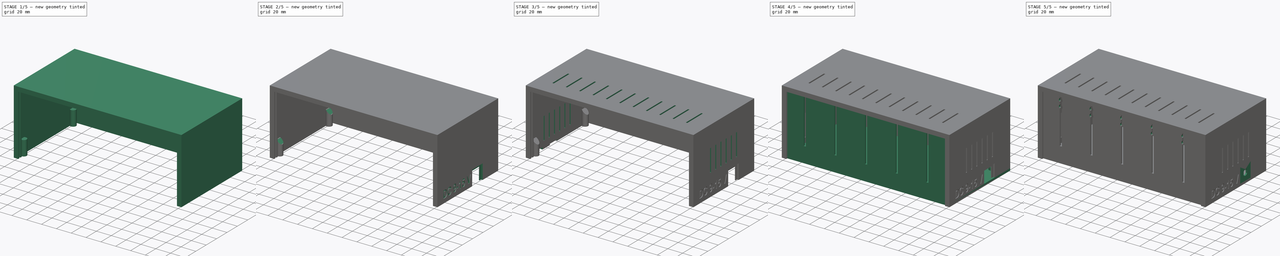
[diagram: build sequence overview — one tinted view per stage of 5, left to right]
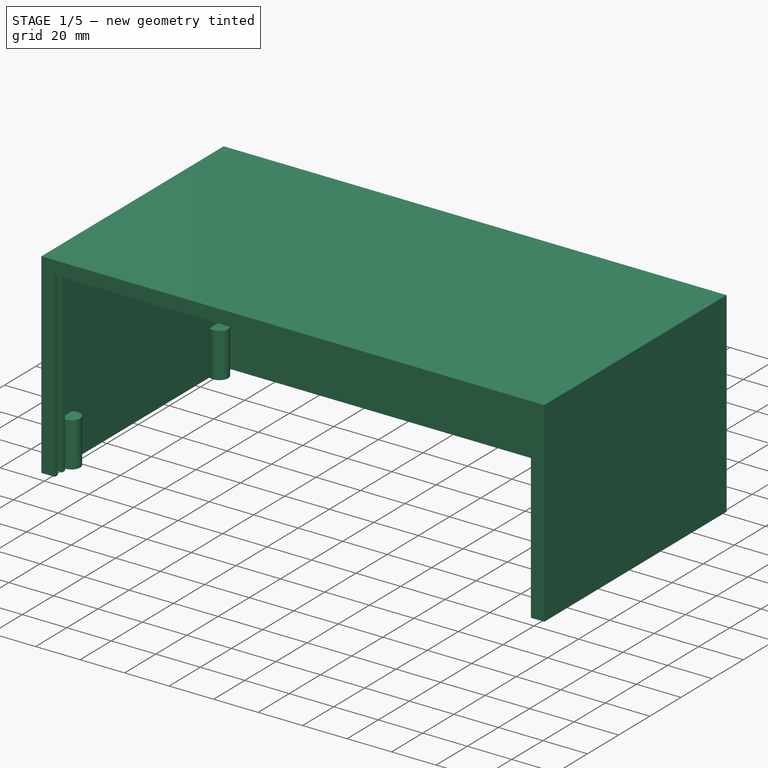
[diagram: stage 1 of 5 — iso view after this stage's code; geometry added in this stage tinted green]
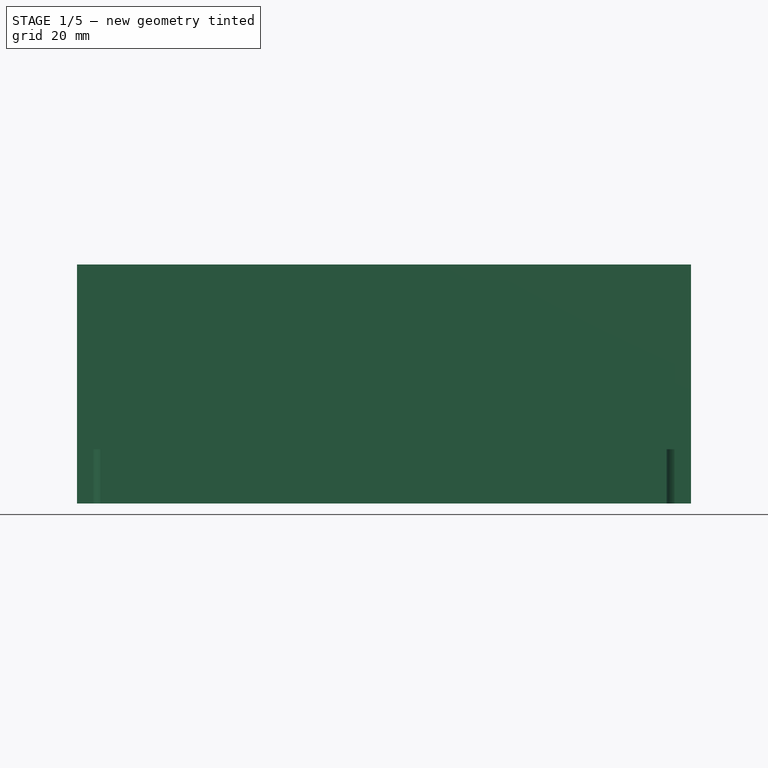
[diagram: stage 1 of 5 — front view after this stage's code; geometry added in this stage tinted green]
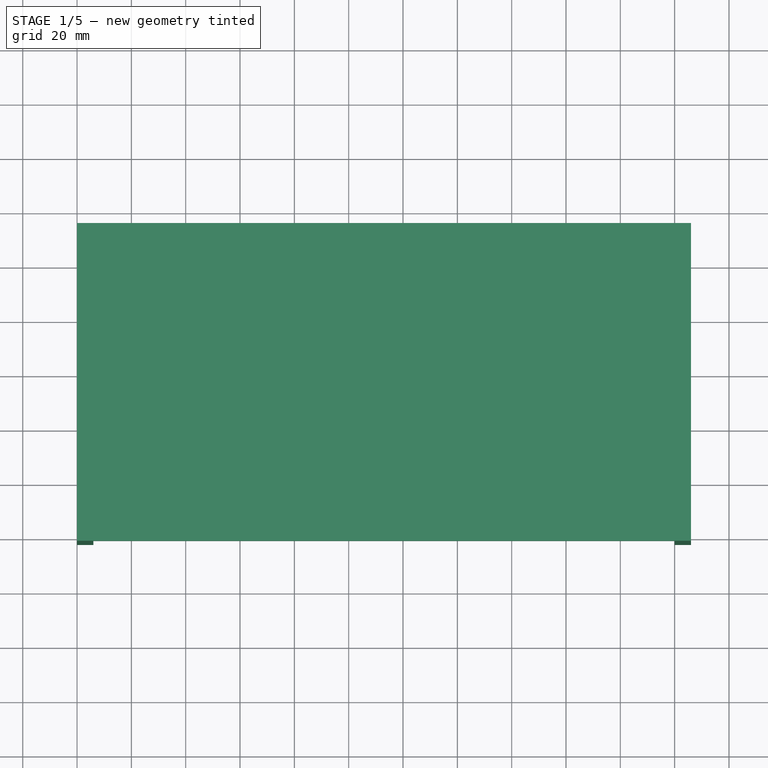
[diagram: stage 1 of 5 — top view after this stage's code; geometry added in this stage tinted green]
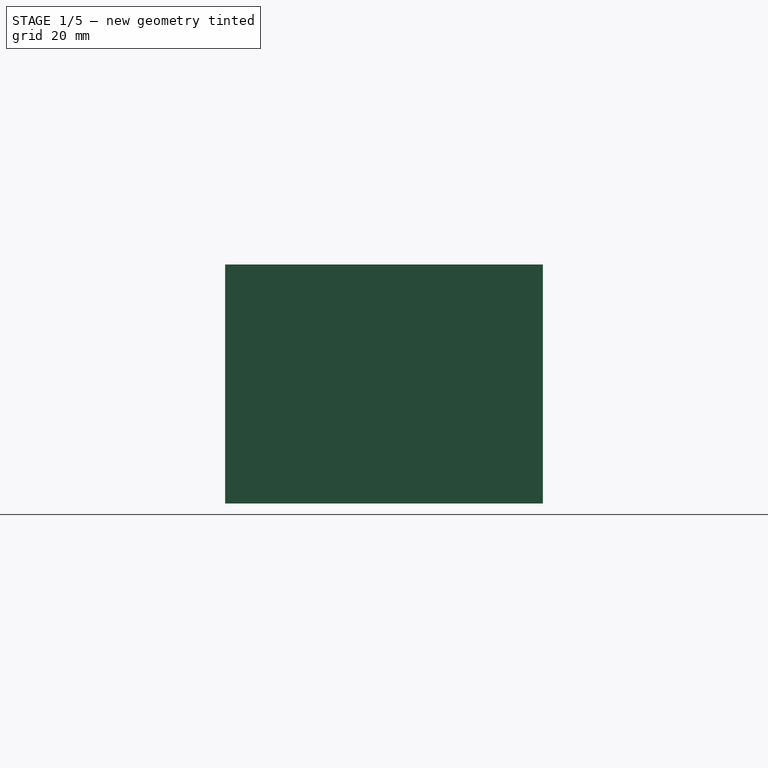
[diagram: stage 1 of 5 — right view after this stage's code; geometry added in this stage tinted green]
FCSTD DOCUMENT  (FreeCAD 1.0R39109 (Git))
Label: Корпус
License: All rights reserved
LicenseURL: https://en.wikipedia.org/wiki/All_rights_reserved
objects: Sketcher::SketchObject×25, PartDesign::Pocket×18, PartDesign::Pad×8, PartDesign::Body×2, PartDesign::Draft×2, App::VarSet×1, PartDesign::Thickness×1, Part::Part2DObjectPython×1
note: 140 computed .brp shape members not serialized (recipe doc carries the construction recipe); baked Part::Feature solids carry a one-line shape summary decoded from their .brp

FEATURE [PartDesign::Body] Body  label="Низ"
  AllowCompound = false
  Group = -> [Sketch,Pad,Sketch001,Pad001,Sketch002,Pad002,Sketch003,Pad003,Sketch004,Pocket,Sketch005,Pocket001,Sketch006,Pocket002,Sketch008,Pocket003,Sketch009,Pocket004,Sketch010,Pad004,Sketch011,Pocket005,Sketch012,Pocket006]
  Origin = -> Origin
  Tip = -> Pocket006
FEATURE [Sketcher::SketchObject] Sketch013
  ArcFitTolerance = 1e-06
  AttachmentSupport = -> [XY_Plane001]
  FullyConstrained = true
  MakeInternals = false
  MapMode = 5
  expr: Constraints[10] = VarSet.Width + VarSet.gap_small
  expr: Constraints[11] = VarSet.gap_small
  expr: Constraints[9] = VarSet.length
  sketch-geometry (4):
    g0: LineSegment StartX=0 StartY=-2 StartZ=0 EndX=226 EndY=-2 EndZ=0
    g1: LineSegment StartX=226 StartY=-2 StartZ=0 EndX=226 EndY=115 EndZ=0
    g2: LineSegment StartX=226 StartY=115 StartZ=0 EndX=0 EndY=115 EndZ=0
    g3: LineSegment StartX=0 StartY=115 StartZ=0 EndX=0 EndY=-2 EndZ=0
  constraints (12):
    c: Coincident(g0,g1)
    c: Coincident(g1,g2)
    c: Coincident(g2,g3)
    c: Coincident(g3,g0)
    c: Horizontal(g0)
    c: Horizontal(g2)
    c: Vertical(g1)
    c: Vertical(g3)
    c: PointOnObject(g0,g-2)
    c: DistanceX(g2,g2) = 226
    c: DistanceY(g1,g1) = 117
    c: Distance(g0,g-1) = 2
FEATURE [PartDesign::Pad] Pad005
  Direction = (0,0,1)
  Length = 88
  Length2 = 10
  Profile = -> Sketch013
  ReferenceAxis = -> Sketch013 [N_Axis]
  Refine = true
  Suppressed = false
  Type = 0
FEATURE [PartDesign::Thickness] Thickness
  Base = -> Pad005 [Face5,Face1]
  BaseFeature = -> Pad005
  Intersection = false
  Join = 0
  Mode = 0
  Refine = true
  Reversed = true
  SupportTransform = false
  Suppressed = false
  Value = 3
FEATURE [Sketcher::SketchObject] Sketch014
  ArcFitTolerance = 1e-06
  AttachmentSupport = -> [Thickness]
  ExternalGeometry = -> [Thickness]
  FullyConstrained = true
  MakeInternals = false
  MapMode = 5
  Placement = pos=(0,0,0) rot=(1,0,0;3.14159rad)
  sketch-geometry (4):
    g0: LineSegment StartX=0 StartY=2 StartZ=0 EndX=0 EndY=-4.6 EndZ=0
    g1: LineSegment StartX=0 StartY=-4.6 StartZ=0 EndX=226 EndY=-4.6 EndZ=0
    g2: LineSegment StartX=226 StartY=-4.6 StartZ=0 EndX=226 EndY=2 EndZ=0
    g3: LineSegment StartX=226 StartY=2 StartZ=0 EndX=0 EndY=2 EndZ=0
  constraints (11):
    c: Coincident(g0,g1)
    c: Coincident(g1,g2)
    c: Coincident(g2,g3)
    c: Coincident(g3,g0)
    c: Vertical(g0)
    c: Vertical(g2)
    c: Horizontal(g1)
    c: Horizontal(g3)
    c: Coincident(g0,g-3)
    c: PointOnObject(g1,g-5)
    c: Distance(g0,g0) = 6.6
FEATURE [PartDesign::Pad] Pad006  label="для щілини"
  BaseFeature = -> Thickness
  Direction = (0,0,-1)
  Length = 10
  Length2 = 10
  Profile = -> Sketch014
  ReferenceAxis = -> Sketch014 [N_Axis]
  Refine = true
  Reversed = true
  Suppressed = false
  Type = 2
FEATURE [Sketcher::SketchObject] Sketch015
  ArcFitTolerance = 1e-06
  AttachmentSupport = -> [Pad006]
  FullyConstrained = true
  MakeInternals = false
  MapMode = 5
  Placement = pos=(0,0,0) rot=(1,0,0;3.14159rad)
  sketch-geometry (4):
    g0: LineSegment StartX=3 StartY=0 StartZ=0 EndX=3 EndY=-2.6 EndZ=0
    g1: LineSegment StartX=3 StartY=-2.6 StartZ=0 EndX=223 EndY=-2.6 EndZ=0
    g2: LineSegment StartX=223 StartY=-2.6 StartZ=0 EndX=223 EndY=0 EndZ=0
    g3: LineSegment StartX=223 StartY=0 StartZ=0 EndX=3 EndY=0 EndZ=0
  constraints (12):
    c: Coincident(g0,g1)
    c: Coincident(g1,g2)
    c: Coincident(g2,g3)
    c: Coincident(g3,g0)
    c: Vertical(g0)
    c: Vertical(g2)
    c: Horizontal(g1)
    c: Horizontal(g3)
    c: PointOnObject(g0,g-1)
    c: DistanceY(g0,g0) = 2.6
    c: DistanceX(g3,g3) = 220
    c: Distance(g0,g-2) = 3
FEATURE [PartDesign::Pocket] Pocket007  label="щілина"
  BaseFeature = -> Pad006
  Direction = (0,0,1)
  Length = 85.2
  Length2 = 5
  Profile = -> Sketch015
  ReferenceAxis = -> Sketch015 [N_Axis]
  Refine = true
  Suppressed = false
  Type = 0
FEATURE [Sketcher::SketchObject] Sketch016
  ArcFitTolerance = 1e-06
  AttachmentSupport = -> [Pocket007]
  ExternalGeometry = -> [Pocket007]
  FullyConstrained = false
  MakeInternals = false
  MapMode = 5
  Placement = pos=(0,0,0) rot=(1,0,0;3.14159rad)
  sketch-geometry (4):
    g0: LineSegment StartX=6 StartY=6.21344 StartZ=0 EndX=6 EndY=-9.67903 EndZ=0
    g1: LineSegment StartX=6 StartY=-9.67903 StartZ=0 EndX=220 EndY=-9.67903 EndZ=0
    g2: LineSegment StartX=220 StartY=-9.67903 StartZ=0 EndX=220 EndY=6.21344 EndZ=0
    g3: LineSegment StartX=220 StartY=6.21344 StartZ=0 EndX=6 EndY=6.21344 EndZ=0
  constraints (10):
    c: Coincident(g0,g1)
    c: Coincident(g1,g2)
    c: Coincident(g2,g3)
    c: Coincident(g3,g0)
    c: Vertical(g0)
    c: Vertical(g2)
    c: Horizontal(g1)
    c: Horizontal(g3)
    c: Distance(g0,g-2) = 6
    c: DistanceX(g2,g-3) = 6
FEATURE [PartDesign::Pocket] Pocket008  label="заглиблення"
  BaseFeature = -> Pocket007
  Direction = (0,0,1)
  Length = 82
  Length2 = 5
  Profile = -> Sketch016
  ReferenceAxis = -> Sketch016 [N_Axis]
  Refine = true
  Suppressed = false
  Type = 0
FEATURE [Sketcher::SketchObject] Sketch017
  ArcFitTolerance = 1e-06
  AttachmentSupport = -> [Pocket008]
  FullyConstrained = false
  MakeInternals = false
  MapMode = 5
  Placement = pos=(0,0,0) rot=(1,0,0;3.14159rad)
  sketch-geometry (8):
    g0: LineSegment [constr] StartX=5 StartY=-10 StartZ=0 EndX=5 EndY=-105 EndZ=0
    g1: LineSegment [constr] StartX=5 StartY=-105 StartZ=0 EndX=221 EndY=-105 EndZ=0
    g2: LineSegment [constr] StartX=221 StartY=-105 StartZ=0 EndX=221 EndY=-10 EndZ=0
    g3: LineSegment [constr] StartX=221 StartY=-10 StartZ=0 EndX=5 EndY=-10 EndZ=0
    g4: Circle CenterX=5 CenterY=-10 CenterZ=0 NormalX=0 NormalY=0 NormalZ=1 AngleXU=0 Radius=4
    g5: Circle CenterX=5 CenterY=-105 CenterZ=0 NormalX=0 NormalY=0 NormalZ=1 AngleXU=0 Radius=4
    g6: Circle CenterX=221 CenterY=-10 CenterZ=0 NormalX=0 NormalY=0 NormalZ=1 AngleXU=0 Radius=4
    g7: Circle CenterX=221 CenterY=-105 CenterZ=0 NormalX=0 NormalY=0 NormalZ=1 AngleXU=0 Radius=4
  constraints (18):
    c: Coincident(g1,g2)
    c: Coincident(g2,g3)
    c: Vertical(g0)
    c: Vertical(g2)
    c: Horizontal(g1)
    c: Horizontal(g3)
    c: Distance(g0,g-1) = 10
    c: DistanceX(g3,g3) = 216
    c: Distance(g0,g-1) = 105
    c: Distance(g0,g-2) = 5
    c: Coincident(g4,g0)
    c: Coincident(g5,g0)
    c: Coincident(g6,g2)
    c: Coincident(g7,g1)
    c: Equal(g4,g6)
    c: Equal(g6,g7)
    c: Equal(g7,g5)
    c: Diameter(g4) = 8
FEATURE [PartDesign::Pad] Pad007  label="стйки"
  BaseFeature = -> Pocket008
  Direction = (0,0,-1)
  Length = 20
  Length2 = 10
  Profile = -> Sketch017
  ReferenceAxis = -> Sketch017 [N_Axis]
  Refine = true
  Reversed = true
  Suppressed = false
  Type = 0
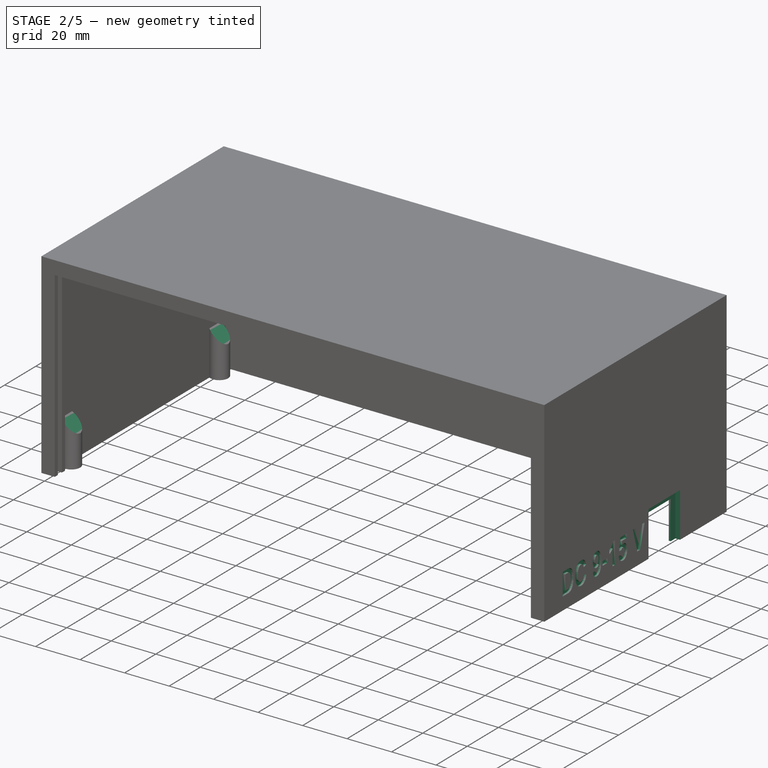
[diagram: stage 2 of 5 — iso view after this stage's code; geometry added in this stage tinted green]
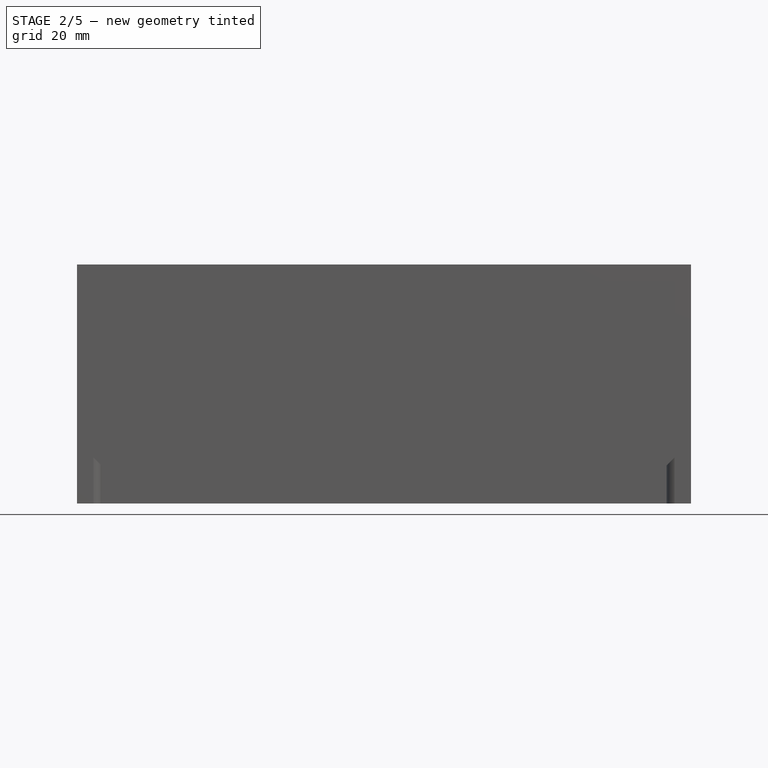
[diagram: stage 2 of 5 — front view after this stage's code; geometry added in this stage tinted green]
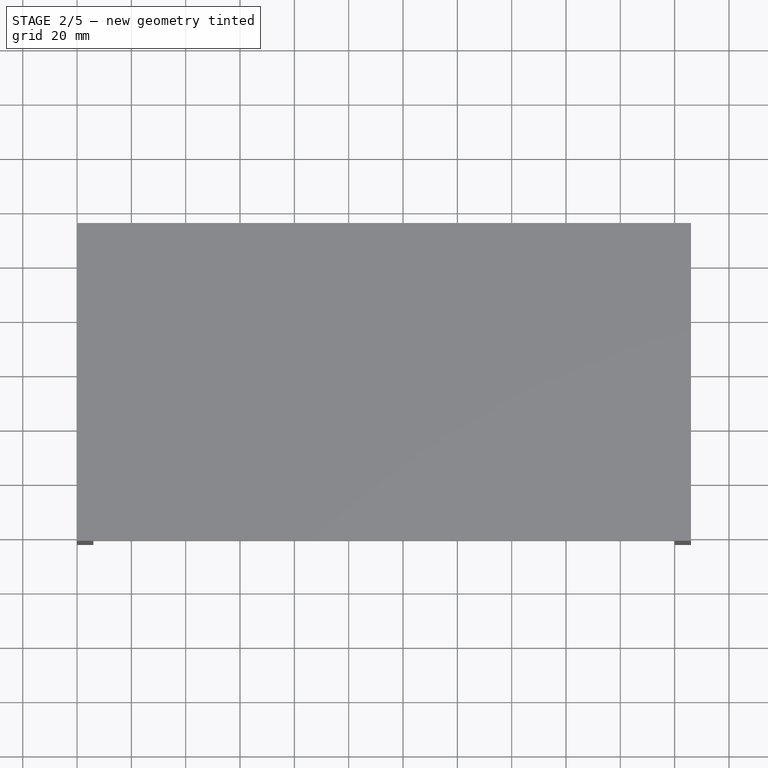
[diagram: stage 2 of 5 — top view after this stage's code; geometry added in this stage tinted green]
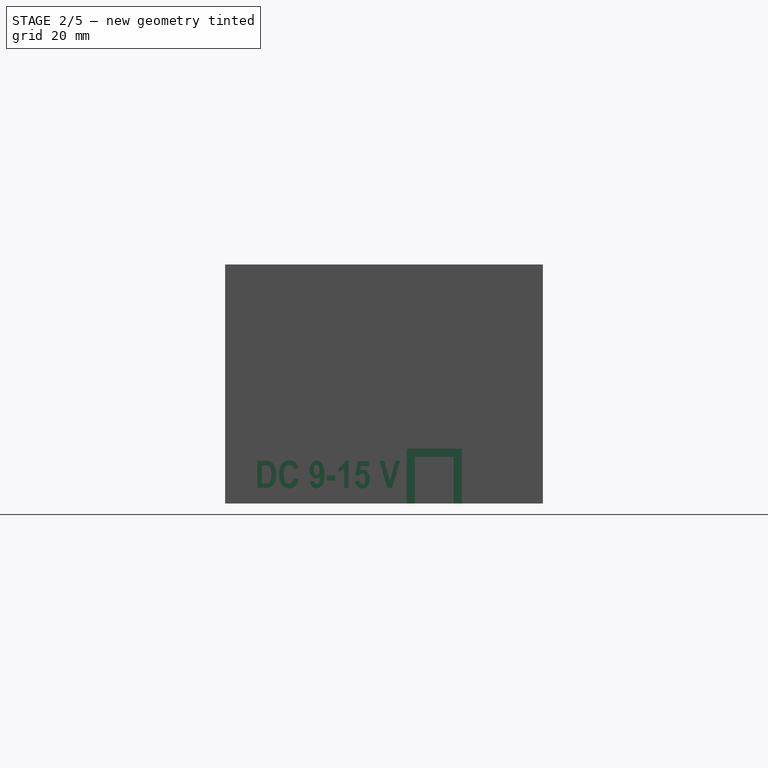
[diagram: stage 2 of 5 — right view after this stage's code; geometry added in this stage tinted green]
FEATURE [PartDesign::Draft] Draft
  Angle = 45
  Base = -> Pad007 [Face27,Face25]
  BaseFeature = -> Pad007
  NeutralPlane = -> Pad007 [Face14]
  Refine = true
  SupportTransform = false
  Suppressed = false
FEATURE [PartDesign::Draft] Draft001
  Angle = 45
  Base = -> Draft [Face22,Face23]
  BaseFeature = -> Draft
  NeutralPlane = -> Draft [Face12]
  Refine = true
  SupportTransform = false
  Suppressed = false
FEATURE [Sketcher::SketchObject] Sketch018
  ArcFitTolerance = 1e-06
  AttachmentSupport = -> [Draft001]
  ExternalGeometry = -> [Draft001]
  FullyConstrained = true
  MakeInternals = false
  MapMode = 5
  Placement = pos=(0,0,0) rot=(1,0,0;3.14159rad)
  sketch-geometry (4):
    g0: Circle CenterX=5 CenterY=-10 CenterZ=0 NormalX=0 NormalY=0 NormalZ=1 AngleXU=0 Radius=1.25
    g1: Circle CenterX=221 CenterY=-10 CenterZ=0 NormalX=0 NormalY=0 NormalZ=1 AngleXU=0 Radius=1.25
    g2: Circle CenterX=221 CenterY=-105 CenterZ=0 NormalX=0 NormalY=0 NormalZ=1 AngleXU=0 Radius=1.25
    g3: Circle CenterX=5 CenterY=-105 CenterZ=0 NormalX=0 NormalY=0 NormalZ=1 AngleXU=0 Radius=1.25
  constraints (8):
    c: Coincident(g0,g-3)
    c: Coincident(g1,g-5)
    c: Coincident(g2,g-6)
    c: Coincident(g3,g-4)
    c: Equal(g0,g3)
    c: Equal(g3,g1)
    c: Equal(g1,g2)
    c: Diameter(g0) = 2.5
FEATURE [PartDesign::Pocket] Pocket009  label="отвори для шурупів"
  BaseFeature = -> Draft001
  Direction = (0,0,1)
  Length = 10
  Length2 = 5
  Profile = -> Sketch018
  ReferenceAxis = -> Sketch018 [N_Axis]
  Refine = true
  Suppressed = false
  Type = 0
FEATURE [Sketcher::SketchObject] Sketch019
  ArcFitTolerance = 1e-06
  AttachmentSupport = -> [Pocket009]
  ExternalGeometry = -> [Pocket009]
  FullyConstrained = false
  MakeInternals = false
  MapMode = 5
  Placement = pos=(0,0,0) rot=(1,0,0;3.14159rad)
  sketch-geometry (5):
    g0: LineSegment StartX=223.9 StartY=-64.85 StartZ=0 EndX=223.9 EndY=-85.15 EndZ=0
    g1: LineSegment StartX=223.9 StartY=-85.15 StartZ=0 EndX=229.125 EndY=-85.15 EndZ=0
    g2: LineSegment StartX=229.125 StartY=-85.15 StartZ=0 EndX=229.125 EndY=-64.85 EndZ=0
    g3: LineSegment StartX=229.125 StartY=-64.85 StartZ=0 EndX=223.9 EndY=-64.85 EndZ=0
    g4: GeomPoint X=229.125 Y=-75 Z=0
  constraints (12):
    c: Coincident(g0,g1)
    c: Coincident(g1,g2)
    c: Coincident(g2,g3)
    c: Coincident(g3,g0)
    c: Vertical(g0)
    c: Vertical(g2)
    c: Horizontal(g1)
    c: Horizontal(g3)
    c: Symmetric(g2,g2,g4)
    c: Distance(g4,g-1) = 75
    c: Distance(g2,g2) = 20.3
    c: Distance(g0,g-3) = 2.1
FEATURE [PartDesign::Pocket] Pocket010  label="отвір для штекера живлення001"
  BaseFeature = -> Pocket009
  Direction = (0,0,1)
  Length = 20.2
  Length2 = 5
  Profile = -> Sketch019
  ReferenceAxis = -> Sketch019 [N_Axis]
  Refine = true
  Suppressed = false
  Type = 0
FEATURE [Sketcher::SketchObject] Sketch020
  ArcFitTolerance = 1e-06
  AttachmentSupport = -> [Pocket010]
  ExternalGeometry = -> [Pocket010]
  FullyConstrained = true
  MakeInternals = false
  MapMode = 5
  Placement = pos=(223.9,0,0) rot=(0.57735,0.57735,0.57735;2.0944rad)
  sketch-geometry (4):
    g0: LineSegment StartX=67.85 StartY=0 StartZ=0 EndX=82.15 EndY=0 EndZ=0
    g1: LineSegment StartX=82.15 StartY=0 StartZ=0 EndX=82.15 EndY=17.2 EndZ=0
    g2: LineSegment StartX=82.15 StartY=17.2 StartZ=0 EndX=67.85 EndY=17.2 EndZ=0
    g3: LineSegment StartX=67.85 StartY=17.2 StartZ=0 EndX=67.85 EndY=0 EndZ=0
  constraints (12):
    c: Coincident(g0,g1)
    c: Coincident(g1,g2)
    c: Coincident(g2,g3)
    c: Coincident(g3,g0)
    c: Horizontal(g0)
    c: Horizontal(g2)
    c: Vertical(g1)
    c: Vertical(g3)
    c: PointOnObject(g0,g-1)
    c: Distance(g1,g-3) = 3
    c: Distance(g1,g-5) = 3
    c: Distance(g2,g-4) = 3
FEATURE [PartDesign::Pocket] Pocket011  label="отвір для штекера живлення002"
  BaseFeature = -> Pocket010
  Direction = (-1,0,0)
  Length = 5
  Length2 = 5
  Profile = -> Sketch020
  ReferenceAxis = -> Sketch020 [N_Axis]
  Refine = true
  Suppressed = false
  Type = 0
FEATURE [Part::Part2DObjectPython] ShapeString  # Draft 2D object (typed FeaturePython)
  FontFile = <path>
  Fuse = false
  Justification = 6
  JustificationReference = 0
  KeepLeftMargin = false
  MakeFace = true
  ObliqueAngle = 0
  Placement = pos=(226,9.88,5.75) rot=(0.58,0.58,0.58;2.0944rad)
  ScaleToSize = true
  Size = 10
  String = DC 9-15 V
  Tracking = 0
FEATURE [PartDesign::Pocket] Pocket012  label="надпис"
  BaseFeature = -> Pocket011
  Direction = (-1,1e-16,-2e-16)
  Length = 1
  Length2 = 5
  Profile = -> ShapeString
  ReferenceAxis = -> ShapeString [N_Axis]
  Refine = true
  Suppressed = false
  Type = 0
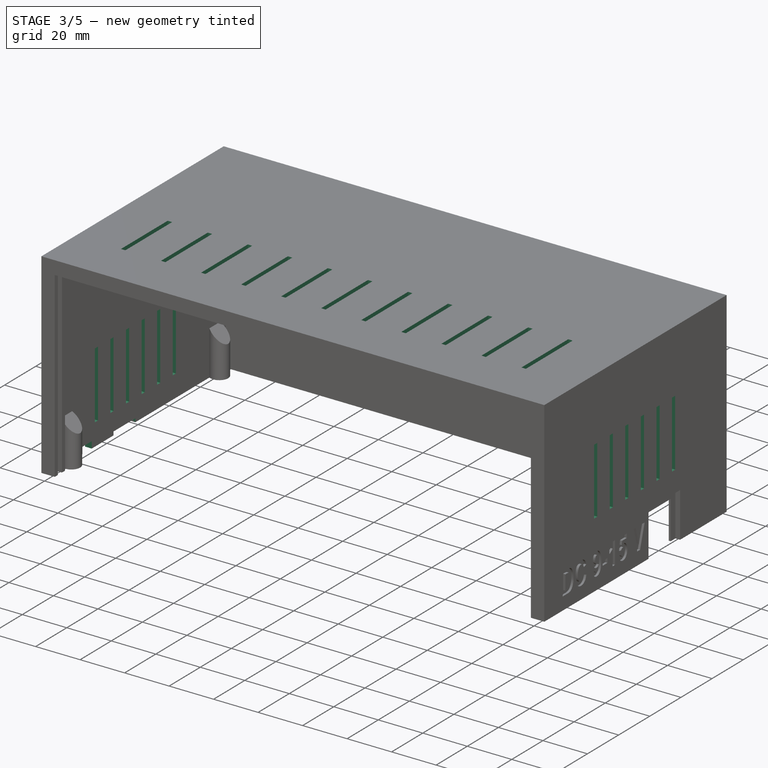
[diagram: stage 3 of 5 — iso view after this stage's code; geometry added in this stage tinted green]
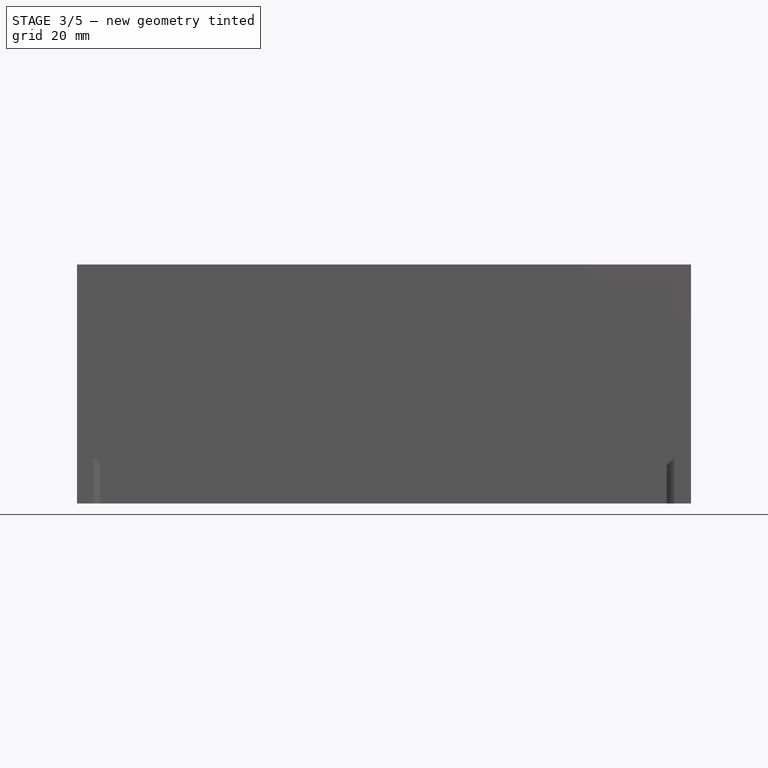
[diagram: stage 3 of 5 — front view after this stage's code; geometry added in this stage tinted green]
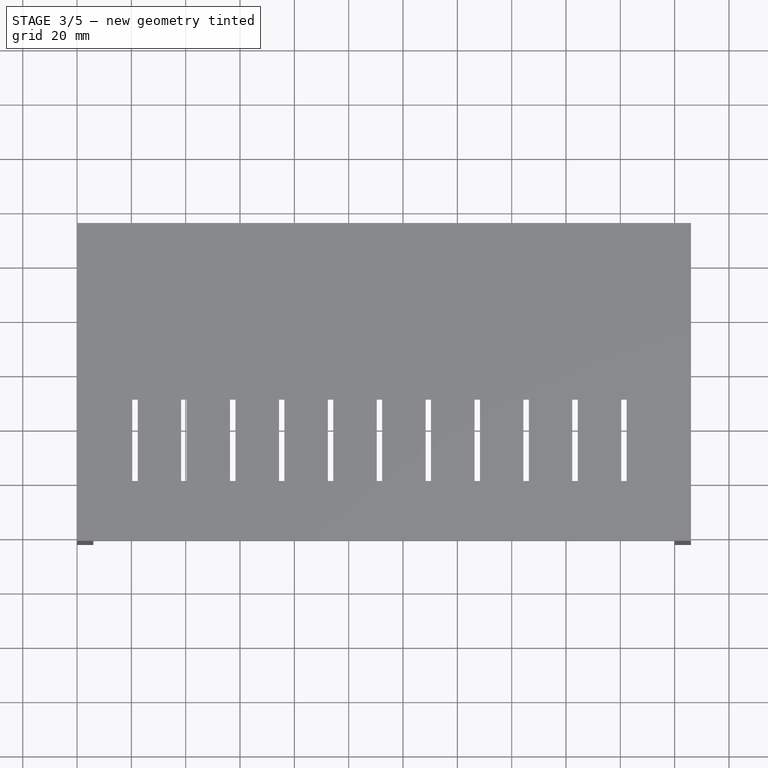
[diagram: stage 3 of 5 — top view after this stage's code; geometry added in this stage tinted green]
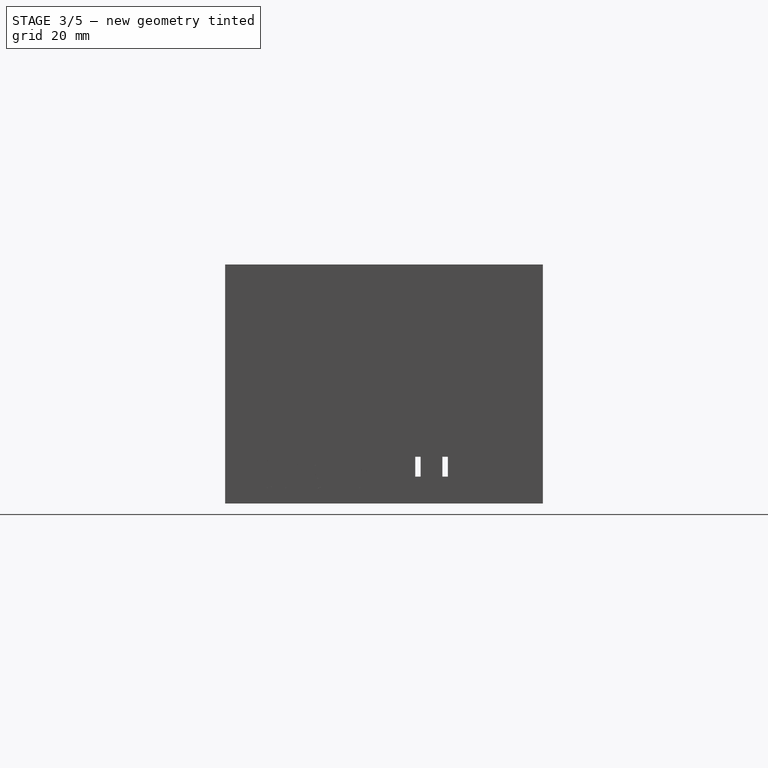
[diagram: stage 3 of 5 — right view after this stage's code; geometry added in this stage tinted green]
FEATURE [Sketcher::SketchObject] Sketch021
  ArcFitTolerance = 1e-06
  AttachmentSupport = -> [Pocket012]
  FullyConstrained = false
  MakeInternals = false
  MapMode = 5
  Placement = pos=(0,0,0) rot=(1,0,0;3.14159rad)
  sketch-geometry (4):
    g0: LineSegment StartX=0 StartY=-20 StartZ=0 EndX=0 EndY=-26 EndZ=0
    g1: LineSegment StartX=0 StartY=-26 StartZ=0 EndX=9.61367 EndY=-26 EndZ=0
    g2: LineSegment StartX=9.61367 StartY=-26 StartZ=0 EndX=9.61367 EndY=-20 EndZ=0
    g3: LineSegment StartX=9.61367 StartY=-20 StartZ=0 EndX=0 EndY=-20 EndZ=0
  constraints (11):
    c: Coincident(g0,g1)
    c: Coincident(g1,g2)
    c: Coincident(g2,g3)
    c: Coincident(g3,g0)
    c: Vertical(g0)
    c: Vertical(g2)
    c: Horizontal(g1)
    c: Horizontal(g3)
    c: PointOnObject(g0,g-2)
    c: Distance(g0,g-1) = 20
    c: DistanceY(g0,g0) = 6
FEATURE [PartDesign::Pocket] Pocket013  label="для дротів"
  BaseFeature = -> Pocket012
  Direction = (0,0,1)
  Length = 3
  Length2 = 5
  Profile = -> Sketch021
  ReferenceAxis = -> Sketch021 [N_Axis]
  Refine = true
  Suppressed = false
  Type = 0
FEATURE [Sketcher::SketchObject] Sketch022
  ArcFitTolerance = 1e-06
  AttachmentSupport = -> [Pocket013]
  FullyConstrained = false
  MakeInternals = false
  MapMode = 5
  Placement = pos=(0,0,0) rot=(1,0,0;3.14159rad)
  sketch-geometry (4):
    g0: LineSegment StartX=0 StartY=-40 StartZ=0 EndX=0 EndY=-54 EndZ=0
    g1: LineSegment StartX=0 StartY=-54 StartZ=0 EndX=7.76128 EndY=-54 EndZ=0
    g2: LineSegment StartX=7.76128 StartY=-54 StartZ=0 EndX=7.76128 EndY=-40 EndZ=0
    g3: LineSegment StartX=7.76128 StartY=-40 StartZ=0 EndX=0 EndY=-40 EndZ=0
  constraints (11):
    c: Coincident(g0,g1)
    c: Coincident(g1,g2)
    c: Coincident(g2,g3)
    c: Coincident(g3,g0)
    c: Vertical(g0)
    c: Vertical(g2)
    c: Horizontal(g1)
    c: Horizontal(g3)
    c: PointOnObject(g0,g-2)
    c: Distance(g0,g-1) = 40
    c: DistanceY(g0,g0) = 14
FEATURE [PartDesign::Pocket] Pocket014  label="для дротів001"
  BaseFeature = -> Pocket013
  Direction = (0,0,1)
  Length = 1.6
  Length2 = 5
  Profile = -> Sketch022
  ReferenceAxis = -> Sketch022 [N_Axis]
  Refine = true
  Suppressed = false
  Type = 0
FEATURE [Sketcher::SketchObject] Sketch023
  ArcFitTolerance = 1e-06
  AttachmentSupport = -> [Pocket014]
  FullyConstrained = false
  MakeInternals = false
  MapMode = 5
  Placement = pos=(0,0,0) rot=(0.57735,-0.57735,-0.57735;2.0944rad)
  sketch-geometry (24):
    g0: LineSegment StartX=-80 StartY=39.89 StartZ=0 EndX=-80 EndY=9.89003 EndZ=0
    g1: LineSegment StartX=-80 StartY=9.89003 StartZ=0 EndX=-78 EndY=9.89003 EndZ=0
    g2: LineSegment StartX=-78 StartY=9.89003 StartZ=0 EndX=-78 EndY=39.89 EndZ=0
    g3: LineSegment StartX=-78 StartY=39.89 StartZ=0 EndX=-80 EndY=39.89 EndZ=0
    g4: LineSegment StartX=-70 StartY=39.89 StartZ=0 EndX=-70 EndY=9.89003 EndZ=0
    g5: LineSegment StartX=-70 StartY=9.89003 StartZ=0 EndX=-68 EndY=9.89003 EndZ=0
    g6: LineSegment StartX=-68 StartY=9.89003 StartZ=0 EndX=-68 EndY=39.89 EndZ=0
    g7: LineSegment StartX=-68 StartY=39.89 StartZ=0 EndX=-70 EndY=39.89 EndZ=0
    g8: LineSegment StartX=-60 StartY=39.89 StartZ=0 EndX=-60 EndY=9.89003 EndZ=0
    g9: LineSegment StartX=-60 StartY=9.89003 StartZ=0 EndX=-58 EndY=9.89003 EndZ=0
    g10: LineSegment StartX=-58 StartY=9.89003 StartZ=0 EndX=-58 EndY=39.89 EndZ=0
    g11: LineSegment StartX=-58 StartY=39.89 StartZ=0 EndX=-60 EndY=39.89 EndZ=0
    g12: LineSegment StartX=-50 StartY=39.89 StartZ=0 EndX=-50 EndY=9.89003 EndZ=0
    g13: LineSegment StartX=-50 StartY=9.89003 StartZ=0 EndX=-48 EndY=9.89003 EndZ=0
    g14: LineSegment StartX=-48 StartY=9.89003 StartZ=0 EndX=-48 EndY=39.89 EndZ=0
    g15: LineSegment StartX=-48 StartY=39.89 StartZ=0 EndX=-50 EndY=39.89 EndZ=0
    g16: LineSegment StartX=-40 StartY=39.89 StartZ=0 EndX=-40 EndY=9.89003 EndZ=0
    g17: LineSegment StartX=-40 StartY=9.89003 StartZ=0 EndX=-38 EndY=9.89003 EndZ=0
    g18: LineSegment StartX=-38 StartY=9.89003 StartZ=0 EndX=-38 EndY=39.89 EndZ=0
    g19: LineSegment StartX=-38 StartY=39.89 StartZ=0 EndX=-40 EndY=39.89 EndZ=0
    g20: LineSegment StartX=-30 StartY=39.89 StartZ=0 EndX=-30 EndY=9.89003 EndZ=0
    g21: LineSegment StartX=-30 StartY=9.89003 StartZ=0 EndX=-28 EndY=9.89003 EndZ=0
    g22: LineSegment StartX=-28 StartY=9.89003 StartZ=0 EndX=-28 EndY=39.89 EndZ=0
    g23: LineSegment StartX=-28 StartY=39.89 StartZ=0 EndX=-30 EndY=39.89 EndZ=0
  constraints (61):
    c: Coincident(g0,g1)
    c: Coincident(g1,g2)
    c: Coincident(g2,g3)
    c: Coincident(g3,g0)
    c: Vertical(g0)
    c: Vertical(g2)
    c: Horizontal(g1)
    c: Horizontal(g3)
    c: Distance(g0,g2) = 2
    c: Distance(g1,g3) = 30
    c: Distance(g0,g-2) = 80
    c: Coincident(g4,g5)
    c: Coincident(g8,g9)
    c: Coincident(g12,g13)
    c: Coincident(g16,g17)
    c: Coincident(g20,g21)
    c: Coincident(g5,g6)
    c: Coincident(g9,g10)
    c: Coincident(g13,g14)
    c: Coincident(g17,g18)
    c: Coincident(g21,g22)
    c: Coincident(g6,g7)
    c: Coincident(g10,g11)
    c: Coincident(g14,g15)
    c: Coincident(g18,g19)
    c: Coincident(g22,g23)
    c: Coincident(g7,g4)
    c: Coincident(g11,g8)
    c: Coincident(g15,g12)
    c: Coincident(g19,g16)
    c: Coincident(g23,g20)
    c: Vertical(g4)
    c: Vertical(g8)
    c: Vertical(g12)
    c: Vertical(g16)
    c: Vertical(g20)
    c: Vertical(g6)
    c: Vertical(g10)
    c: Vertical(g14)
    c: Vertical(g18)
    c: Vertical(g22)
    c: Horizontal(g5)
    c: Horizontal(g9)
    c: Horizontal(g13)
    c: Horizontal(g17)
    c: Horizontal(g21)
    c: Horizontal(g7)
    c: Horizontal(g11)
    c: Horizontal(g15)
    c: Horizontal(g19)
    c: Horizontal(g23)
    c: Distance(g4,g6) = 2
    c: Distance(g8,g10) = 2
    c: Distance(g12,g14) = 2
    c: Distance(g16,g18) = 2
    c: Distance(g20,g22) = 2
    c: Distance(g5,g7) = 30
    c: Distance(g9,g11) = 30
    c: Distance(g13,g15) = 30
    c: Distance(g17,g19) = 30
    c: Distance(g21,g23) = 30
FEATURE [PartDesign::Pocket] Pocket015
  BaseFeature = -> Pocket014
  Direction = (1,0,0)
  Length = 5
  Length2 = 5
  Profile = -> Sketch023
  ReferenceAxis = -> Sketch023 [N_Axis]
  Refine = true
  Suppressed = false
  Type = 0
FEATURE [Sketcher::SketchObject] Sketch024
  ArcFitTolerance = 1e-06
  AttachmentSupport = -> [Pocket015]
  FullyConstrained = false
  MakeInternals = false
  MapMode = 5
  Placement = pos=(226,0,0) rot=(0.57735,0.57735,0.57735;2.0944rad)
  sketch-geometry (24):
    g0: LineSegment StartX=30 StartY=59.6903 StartZ=0 EndX=30 EndY=29.6903 EndZ=0
    g1: LineSegment StartX=30 StartY=29.6903 StartZ=0 EndX=32 EndY=29.6903 EndZ=0
    g2: LineSegment StartX=32 StartY=29.6903 StartZ=0 EndX=32 EndY=59.6903 EndZ=0
    g3: LineSegment StartX=32 StartY=59.6903 StartZ=0 EndX=30 EndY=59.6903 EndZ=0
    g4: LineSegment StartX=40 StartY=59.6903 StartZ=0 EndX=40 EndY=29.6903 EndZ=0
    g5: LineSegment StartX=40 StartY=29.6903 StartZ=0 EndX=42 EndY=29.6903 EndZ=0
    g6: LineSegment StartX=42 StartY=29.6903 StartZ=0 EndX=42 EndY=59.6903 EndZ=0
    g7: LineSegment StartX=42 StartY=59.6903 StartZ=0 EndX=40 EndY=59.6903 EndZ=0
    g8: LineSegment StartX=50 StartY=59.6903 StartZ=0 EndX=50 EndY=29.6903 EndZ=0
    g9: LineSegment StartX=50 StartY=29.6903 StartZ=0 EndX=52 EndY=29.6903 EndZ=0
    g10: LineSegment StartX=52 StartY=29.6903 StartZ=0 EndX=52 EndY=59.6903 EndZ=0
    g11: LineSegment StartX=52 StartY=59.6903 StartZ=0 EndX=50 EndY=59.6903 EndZ=0
    g12: LineSegment StartX=60 StartY=59.6903 StartZ=0 EndX=60 EndY=29.6903 EndZ=0
    g13: LineSegment StartX=60 StartY=29.6903 StartZ=0 EndX=62 EndY=29.6903 EndZ=0
    g14: LineSegment StartX=62 StartY=29.6903 StartZ=0 EndX=62 EndY=59.6903 EndZ=0
    g15: LineSegment StartX=62 StartY=59.6903 StartZ=0 EndX=60 EndY=59.6903 EndZ=0
    g16: LineSegment StartX=70 StartY=59.6903 StartZ=0 EndX=70 EndY=29.6903 EndZ=0
    g17: LineSegment StartX=70 StartY=29.6903 StartZ=0 EndX=72 EndY=29.6903 EndZ=0
    g18: LineSegment StartX=72 StartY=29.6903 StartZ=0 EndX=72 EndY=59.6903 EndZ=0
    g19: LineSegment StartX=72 StartY=59.6903 StartZ=0 EndX=70 EndY=59.6903 EndZ=0
    g20: LineSegment StartX=80 StartY=59.6903 StartZ=0 EndX=80 EndY=29.6903 EndZ=0
    g21: LineSegment StartX=80 StartY=29.6903 StartZ=0 EndX=82 EndY=29.6903 EndZ=0
    g22: LineSegment StartX=82 StartY=29.6903 StartZ=0 EndX=82 EndY=59.6903 EndZ=0
    g23: LineSegment StartX=82 StartY=59.6903 StartZ=0 EndX=80 EndY=59.6903 EndZ=0
  constraints (61):
    c: Coincident(g0,g1)
    c: Coincident(g1,g2)
    c: Coincident(g2,g3)
    c: Coincident(g3,g0)
    c: Vertical(g0)
    c: Vertical(g2)
    c: Horizontal(g1)
    c: Horizontal(g3)
    c: Distance(g0,g2) = 2
    c: Distance(g1,g3) = 30
    c: DistanceX(g-1,g0) = 30
    c: Coincident(g4,g5)
    c: Coincident(g8,g9)
    c: Coincident(g12,g13)
    c: Coincident(g16,g17)
    c: Coincident(g20,g21)
    c: Coincident(g5,g6)
    c: Coincident(g9,g10)
    c: Coincident(g13,g14)
    c: Coincident(g17,g18)
    c: Coincident(g21,g22)
    c: Coincident(g6,g7)
    c: Coincident(g10,g11)
    c: Coincident(g14,g15)
    c: Coincident(g18,g19)
    c: Coincident(g22,g23)
    c: Coincident(g7,g4)
    c: Coincident(g11,g8)
    c: Coincident(g15,g12)
    c: Coincident(g19,g16)
    c: Coincident(g23,g20)
    c: Vertical(g4)
    c: Vertical(g8)
    c: Vertical(g12)
    c: Vertical(g16)
    c: Vertical(g20)
    c: Vertical(g6)
    c: Vertical(g10)
    c: Vertical(g14)
    c: Vertical(g18)
    c: Vertical(g22)
    c: Horizontal(g5)
    c: Horizontal(g9)
    c: Horizontal(g13)
    c: Horizontal(g17)
    c: Horizontal(g21)
    c: Horizontal(g7)
    c: Horizontal(g11)
    c: Horizontal(g15)
    c: Horizontal(g19)
    c: Horizontal(g23)
    c: Distance(g4,g6) = 2
    c: Distance(g8,g10) = 2
    c: Distance(g12,g14) = 2
    c: Distance(g16,g18) = 2
    c: Distance(g20,g22) = 2
    c: Distance(g5,g7) = 30
    c: Distance(g9,g11) = 30
    c: Distance(g13,g15) = 30
    c: Distance(g17,g19) = 30
    c: Distance(g21,g23) = 30
FEATURE [PartDesign::Pocket] Pocket016
  BaseFeature = -> Pocket015
  Direction = (-1,0,0)
  Length = 5
  Length2 = 5
  Profile = -> Sketch024
  ReferenceAxis = -> Sketch024 [N_Axis]
  Refine = true
  Suppressed = false
  Type = 0
FEATURE [Sketcher::SketchObject] Sketch025
  ArcFitTolerance = 1e-06
  AttachmentSupport = -> [Pocket016]
  FullyConstrained = false
  MakeInternals = false
  MapMode = 5
  Placement = pos=(0,0,88) rot=(0,0,1;0rad)
  sketch-geometry (44):
    g0: LineSegment StartX=20.3224 StartY=50.0179 StartZ=0 EndX=20.3224 EndY=20.0179 EndZ=0
    g1: LineSegment StartX=20.3224 StartY=20.0179 StartZ=0 EndX=22.3224 EndY=20.0179 EndZ=0
    g2: LineSegment StartX=22.3224 StartY=20.0179 StartZ=0 EndX=22.3224 EndY=50.0179 EndZ=0
    g3: LineSegment StartX=22.3224 StartY=50.0179 StartZ=0 EndX=20.3224 EndY=50.0179 EndZ=0
    g4: LineSegment StartX=38.3224 StartY=50.0179 StartZ=0 EndX=38.3224 EndY=20.0179 EndZ=0
    g5: LineSegment StartX=38.3224 StartY=20.0179 StartZ=0 EndX=40.3224 EndY=20.0179 EndZ=0
    g6: LineSegment StartX=40.3224 StartY=20.0179 StartZ=0 EndX=40.3224 EndY=50.0179 EndZ=0
    g7: LineSegment StartX=40.3224 StartY=50.0179 StartZ=0 EndX=38.3224 EndY=50.0179 EndZ=0
    g8: LineSegment StartX=56.3224 StartY=50.0179 StartZ=0 EndX=56.3224 EndY=20.0179 EndZ=0
    g9: LineSegment StartX=56.3224 StartY=20.0179 StartZ=0 EndX=58.3224 EndY=20.0179 EndZ=0
    g10: LineSegment StartX=58.3224 StartY=20.0179 StartZ=0 EndX=58.3224 EndY=50.0179 EndZ=0
    g11: LineSegment StartX=58.3224 StartY=50.0179 StartZ=0 EndX=56.3224 EndY=50.0179 EndZ=0
    g12: LineSegment StartX=74.3224 StartY=50.0179 StartZ=0 EndX=74.3224 EndY=20.0179 EndZ=0
    g13: LineSegment StartX=74.3224 StartY=20.0179 StartZ=0 EndX=76.3224 EndY=20.0179 EndZ=0
    g14: LineSegment StartX=76.3224 StartY=20.0179 StartZ=0 EndX=76.3224 EndY=50.0179 EndZ=0
    g15: LineSegment StartX=76.3224 StartY=50.0179 StartZ=0 EndX=74.3224 EndY=50.0179 EndZ=0
    g16: LineSegment StartX=92.3224 StartY=50.0179 StartZ=0 EndX=92.3224 EndY=20.0179 EndZ=0
    g17: LineSegment StartX=92.3224 StartY=20.0179 StartZ=0 EndX=94.3224 EndY=20.0179 EndZ=0
    g18: LineSegment StartX=94.3224 StartY=20.0179 StartZ=0 EndX=94.3224 EndY=50.0179 EndZ=0
    g19: LineSegment StartX=94.3224 StartY=50.0179 StartZ=0 EndX=92.3224 EndY=50.0179 EndZ=0
    g20: LineSegment StartX=110.322 StartY=50.0179 StartZ=0 EndX=110.322 EndY=20.0179 EndZ=0
    g21: LineSegment StartX=110.322 StartY=20.0179 StartZ=0 EndX=112.322 EndY=20.0179 EndZ=0
    g22: LineSegment StartX=112.322 StartY=20.0179 StartZ=0 EndX=112.322 EndY=50.0179 EndZ=0
    g23: LineSegment StartX=112.322 StartY=50.0179 StartZ=0 EndX=110.322 EndY=50.0179 EndZ=0
    g24: LineSegment StartX=128.322 StartY=50.0179 StartZ=0 EndX=128.322 EndY=20.0179 EndZ=0
    g25: LineSegment StartX=128.322 StartY=20.0179 StartZ=0 EndX=130.322 EndY=20.0179 EndZ=0
    g26: LineSegment StartX=130.322 StartY=20.0179 StartZ=0 EndX=130.322 EndY=50.0179 EndZ=0
    g27: LineSegment StartX=130.322 StartY=50.0179 StartZ=0 EndX=128.322 EndY=50.0179 EndZ=0
    g28: LineSegment StartX=146.322 StartY=50.0179 StartZ=0 EndX=146.322 EndY=20.0179 EndZ=0
    g29: LineSegment StartX=146.322 StartY=20.0179 StartZ=0 EndX=148.322 EndY=20.0179 EndZ=0
    g30: LineSegment StartX=148.322 StartY=20.0179 StartZ=0 EndX=148.322 EndY=50.0179 EndZ=0
    g31: LineSegment StartX=148.322 StartY=50.0179 StartZ=0 EndX=146.322 EndY=50.0179 EndZ=0
    g32: LineSegment StartX=164.322 StartY=50.0179 StartZ=0 EndX=164.322 EndY=20.0179 EndZ=0
    g33: LineSegment StartX=164.322 StartY=20.0179 StartZ=0 EndX=166.322 EndY=20.0179 EndZ=0
    g34: LineSegment StartX=166.322 StartY=20.0179 StartZ=0 EndX=166.322 EndY=50.0179 EndZ=0
    g35: LineSegment StartX=166.322 StartY=50.0179 StartZ=0 EndX=164.322 EndY=50.0179 EndZ=0
    g36: LineSegment StartX=182.322 StartY=50.0179 StartZ=0 EndX=182.322 EndY=20.0179 EndZ=0
    g37: LineSegment StartX=182.322 StartY=20.0179 StartZ=0 EndX=184.322 EndY=20.0179 EndZ=0
    g38: LineSegment StartX=184.322 StartY=20.0179 StartZ=0 EndX=184.322 EndY=50.0179 EndZ=0
    g39: LineSegment StartX=184.322 StartY=50.0179 StartZ=0 EndX=182.322 EndY=50.0179 EndZ=0
    g40: LineSegment StartX=200.322 StartY=50.0179 StartZ=0 EndX=200.322 EndY=20.0179 EndZ=0
    g41: LineSegment StartX=200.322 StartY=20.0179 StartZ=0 EndX=202.322 EndY=20.0179 EndZ=0
    g42: LineSegment StartX=202.322 StartY=20.0179 StartZ=0 EndX=202.322 EndY=50.0179 EndZ=0
    g43: LineSegment StartX=202.322 StartY=50.0179 StartZ=0 EndX=200.322 EndY=50.0179 EndZ=0
  constraints (110):
    c: Coincident(g0,g1)
    c: Coincident(g1,g2)
    c: Coincident(g2,g3)
    c: Coincident(g3,g0)
    c: Vertical(g0)
    c: Vertical(g2)
    c: Horizontal(g1)
    c: Horizontal(g3)
    c: Distance(g0,g2) = 2
    c: Distance(g1,g3) = 30
    c: Coincident(g4,g5)
    c: Coincident(g8,g9)
    c: Coincident(g12,g13)
    c: Coincident(g16,g17)
    c: Coincident(g20,g21)
    c: Coincident(g24,g25)
    c: Coincident(g28,g29)
    c: Coincident(g32,g33)
    c: Coincident(g36,g37)
    c: Coincident(g40,g41)
    c: Coincident(g5,g6)
    c: Coincident(g9,g10)
    c: Coincident(g13,g14)
    c: Coincident(g17,g18)
    c: Coincident(g21,g22)
    c: Coincident(g25,g26)
    c: Coincident(g29,g30)
    c: Coincident(g33,g34)
    c: Coincident(g37,g38)
    c: Coincident(g41,g42)
    c: Coincident(g6,g7)
    c: Coincident(g10,g11)
    c: Coincident(g14,g15)
    c: Coincident(g18,g19)
    c: Coincident(g22,g23)
    c: Coincident(g26,g27)
    c: Coincident(g30,g31)
    c: Coincident(g34,g35)
    c: Coincident(g38,g39)
    c: Coincident(g42,g43)
    c: Coincident(g7,g4)
    c: Coincident(g11,g8)
    c: Coincident(g15,g12)
    c: Coincident(g19,g16)
    c: Coincident(g23,g20)
    c: Coincident(g27,g24)
    c: Coincident(g31,g28)
    c: Coincident(g35,g32)
    c: Coincident(g39,g36)
    c: Coincident(g43,g40)
    c: Vertical(g4)
    c: Vertical(g8)
    c: Vertical(g12)
    c: Vertical(g16)
    c: Vertical(g20)
    c: Vertical(g24)
    c: Vertical(g28)
    c: Vertical(g32)
    c: Vertical(g36)
    c: Vertical(g40)
    c: Vertical(g6)
    c: Vertical(g10)
    c: Vertical(g14)
    c: Vertical(g18)
    c: Vertical(g22)
    c: Vertical(g26)
    c: Vertical(g30)
    c: Vertical(g34)
    c: Vertical(g38)
    c: Vertical(g42)
    c: Horizontal(g5)
    c: Horizontal(g9)
    c: Horizontal(g13)
    c: Horizontal(g17)
    c: Horizontal(g21)
    c: Horizontal(g25)
    c: Horizontal(g29)
    c: Horizontal(g33)
    c: Horizontal(g37)
    c: Horizontal(g41)
    c: Horizontal(g7)
    c: Horizontal(g11)
    c: Horizontal(g15)
    c: Horizontal(g19)
    c: Horizontal(g23)
    c: Horizontal(g27)
    c: Horizontal(g31)
    c: Horizontal(g35)
    c: Horizontal(g39)
    c: Horizontal(g43)
    c: Distance(g4,g6) = 2
    c: Distance(g8,g10) = 2
    c: Distance(g12,g14) = 2
    c: Distance(g16,g18) = 2
    c: Distance(g20,g22) = 2
    c: Distance(g24,g26) = 2
    c: Distance(g28,g30) = 2
    c: Distance(g32,g34) = 2
    c: Distance(g36,g38) = 2
    c: Distance(g40,g42) = 2
    c: Distance(g5,g7) = 30
    c: Distance(g9,g11) = 30
    c: Distance(g13,g15) = 30
    c: Distance(g17,g19) = 30
    c: Distance(g21,g23) = 30
    c: Distance(g25,g27) = 30
    c: Distance(g29,g31) = 30
    c: Distance(g33,g35) = 30
    c: Distance(g37,g39) = 30
    c: Distance(g41,g43) = 30
FEATURE [PartDesign::Pocket] Pocket017
  BaseFeature = -> Pocket016
  Direction = (0,0,-1)
  Length = 5
  Length2 = 5
  Profile = -> Sketch025
  ReferenceAxis = -> Sketch025 [N_Axis]
  Refine = true
  Suppressed = false
  Type = 0
FEATURE [PartDesign::Body] Body001  label="Верх"
  AllowCompound = false
  Group = -> [Sketch013,Pad005,Thickness,Sketch014,Pad006,Sketch015,Pocket007,Sketch016,Pocket008,Sketch017,Pad007,Draft,Draft001,Sketch018,Pocket009,Sketch019,Pocket010,Sketch020,Pocket011,ShapeString,Pocket012,Sketch021,Pocket013,Sketch022,Pocket014,Sketch023,Pocket015,Sketch024,Pocket016,Sketch025,Pocket017]
  Origin = -> Origin001
  Placement = pos=(0,0,3) rot=(0,0,1;0rad)
  Tip = -> Pocket017
note: 1 file-system path scrubbed to <path> (originals preserved in the JSON sidecar)
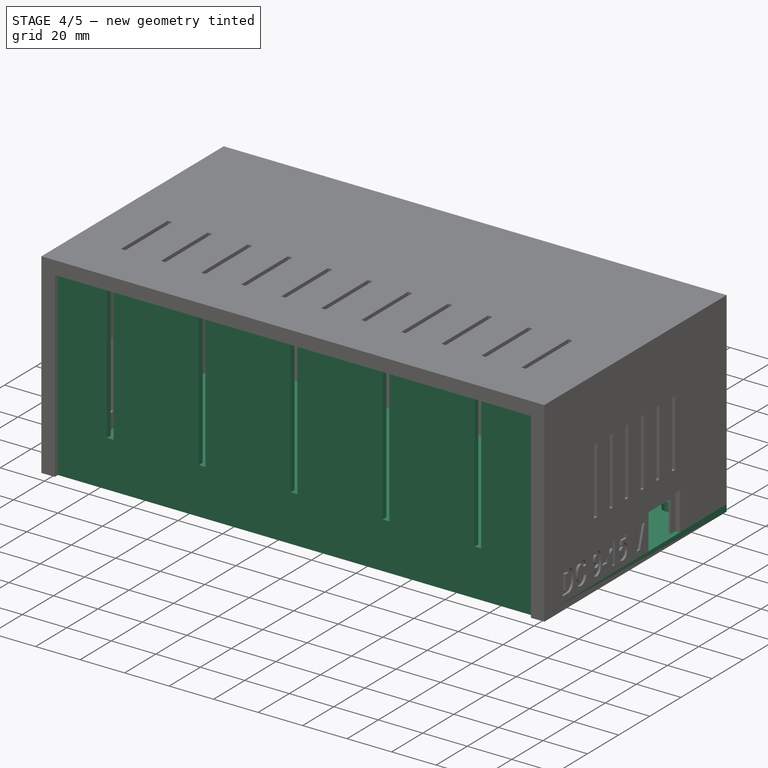
[diagram: stage 4 of 5 — iso view after this stage's code; geometry added in this stage tinted green]
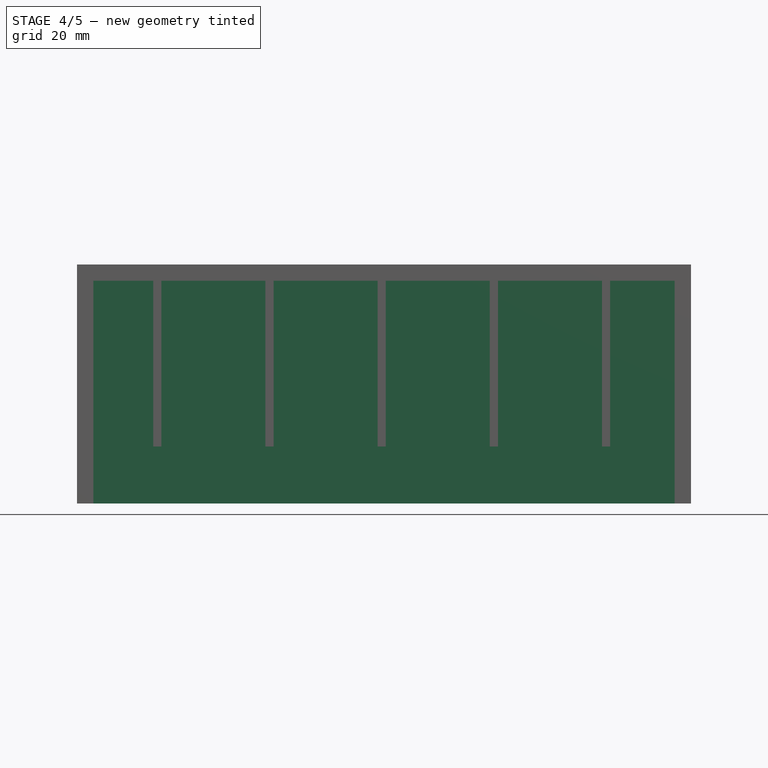
[diagram: stage 4 of 5 — front view after this stage's code; geometry added in this stage tinted green]
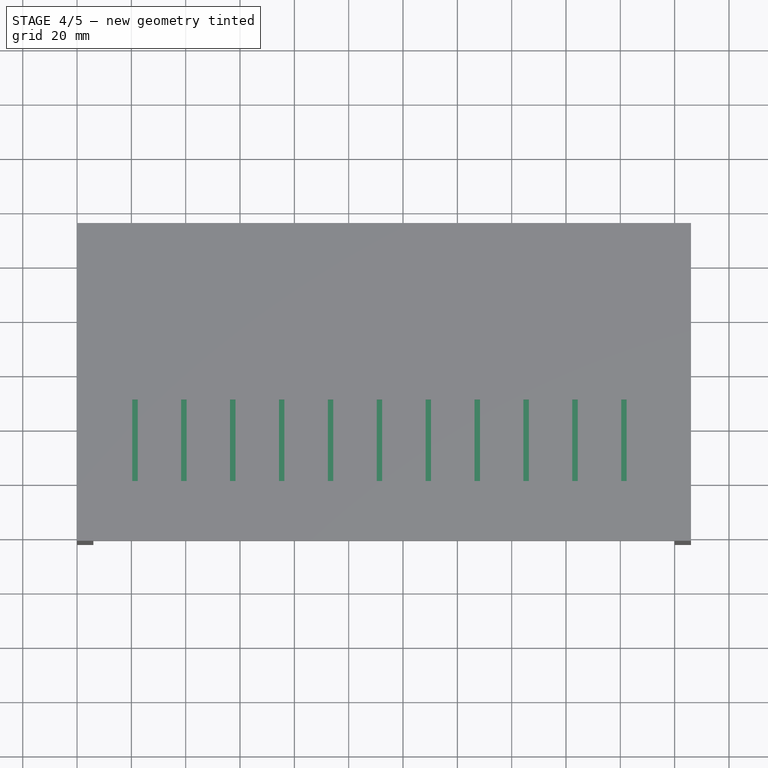
[diagram: stage 4 of 5 — top view after this stage's code; geometry added in this stage tinted green]
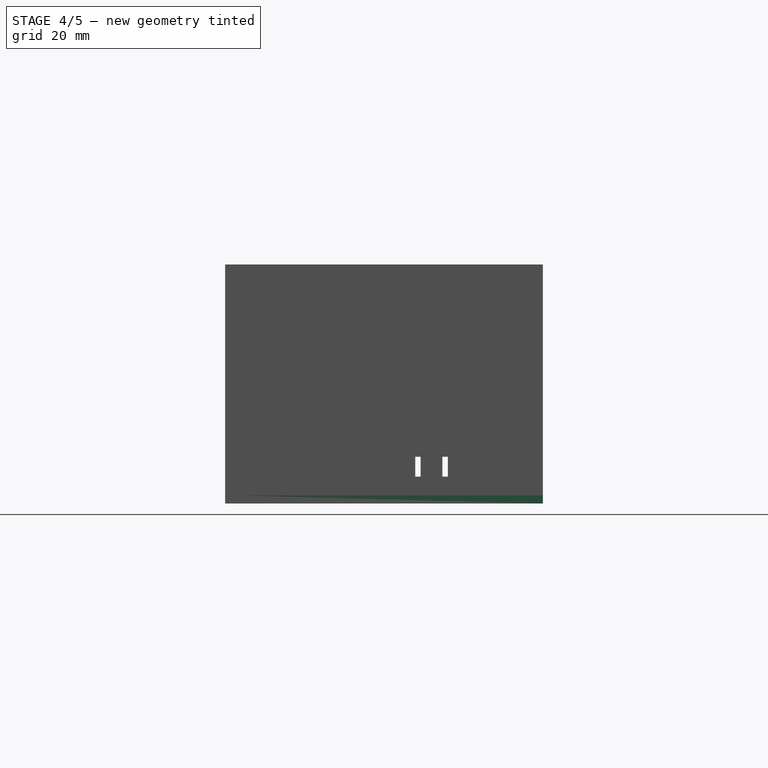
[diagram: stage 4 of 5 — right view after this stage's code; geometry added in this stage tinted green]
FEATURE [Sketcher::SketchObject] Sketch
  ArcFitTolerance = 1e-06
  AttachmentSupport = -> [XY_Plane]
  FullyConstrained = true
  MakeInternals = false
  MapMode = 5
  expr: Constraints[8] = VarSet.length
  expr: Constraints[9] = VarSet.Width
  sketch-geometry (4):
    g0: LineSegment StartX=0 StartY=0 StartZ=0 EndX=226 EndY=0 EndZ=0
    g1: LineSegment StartX=226 StartY=0 StartZ=0 EndX=226 EndY=115 EndZ=0
    g2: LineSegment StartX=226 StartY=115 StartZ=0 EndX=0 EndY=115 EndZ=0
    g3: LineSegment StartX=0 StartY=115 StartZ=0 EndX=0 EndY=0 EndZ=0
  constraints (11):
    c: Coincident(g0,g1)
    c: Coincident(g1,g2)
    c: Coincident(g2,g3)
    c: Coincident(g3,g0)
    c: Horizontal(g0)
    c: Horizontal(g2)
    c: Vertical(g1)
    c: Vertical(g3)
    c: Distance(g1,g3) = 226
    c: Distance(g0,g2) = 115
    c: Coincident(g0,g-1)
FEATURE [PartDesign::Pad] Pad
  Direction = (0,0,1)
  Length = 3
  Length2 = 10
  Profile = -> Sketch
  ReferenceAxis = -> Sketch [N_Axis]
  Refine = true
  Suppressed = false
  Type = 0
FEATURE [Sketcher::SketchObject] Sketch001
  ArcFitTolerance = 1e-06
  AttachmentSupport = -> [Pad]
  FullyConstrained = false
  MakeInternals = false
  MapMode = 5
  Placement = pos=(0,0,3) rot=(0,0,1;0rad)
  expr: Constraints[5] = VarSet.length
  sketch-geometry (53):
    g0: LineSegment StartX=0 StartY=0 StartZ=0 EndX=0 EndY=2.4 EndZ=0
    g1: LineSegment StartX=226 StartY=2.4 StartZ=0 EndX=226 EndY=0 EndZ=0
    g2: LineSegment StartX=226 StartY=0 StartZ=0 EndX=0 EndY=0 EndZ=0
    g3: LineSegment StartX=41.05 StartY=7.4 StartZ=0 EndX=43.05 EndY=7.4 EndZ=0
    g4: LineSegment [constr] StartX=20 StartY=103.008 StartZ=0 EndX=20 EndY=12 EndZ=0
    g5: LineSegment [constr] StartX=20.0002 StartY=12.0084 StartZ=0 EndX=214 EndY=12 EndZ=0
    g6: LineSegment [constr] StartX=214 StartY=12 StartZ=0 EndX=214 EndY=103.008 EndZ=0
    g7: LineSegment [constr] StartX=214 StartY=103.008 StartZ=0 EndX=20 EndY=103.008 EndZ=0
    g8: GeomPoint [constr] X=44.2 Y=7.4 Z=0
    g9: GeomPoint [constr] X=85.5 Y=7.4 Z=0
    g10: GeomPoint [constr] X=126.8 Y=7.4 Z=0
    g11: GeomPoint [constr] X=168.1 Y=7.4 Z=0
    g12: GeomPoint [constr] X=209.4 Y=7.4 Z=0
    g13: LineSegment StartX=43.05 StartY=7.4 StartZ=0 EndX=43.05 EndY=2 EndZ=0
    g14: LineSegment StartX=43.05 StartY=2 StartZ=0 EndX=45.35 EndY=2 EndZ=0
    g15: LineSegment StartX=45.35 StartY=2 StartZ=0 EndX=45.35 EndY=7.4 EndZ=0
    g16: LineSegment StartX=84.35 StartY=7.4 StartZ=0 EndX=84.35 EndY=2 EndZ=0
    g17: LineSegment StartX=84.35 StartY=2 StartZ=0 EndX=86.65 EndY=2 EndZ=0
    g18: LineSegment StartX=86.65 StartY=2 StartZ=0 EndX=86.65 EndY=7.4 EndZ=0
    g19: LineSegment StartX=125.65 StartY=7.4 StartZ=0 EndX=125.65 EndY=2 EndZ=0
    g20: LineSegment StartX=125.65 StartY=2 StartZ=0 EndX=127.95 EndY=2 EndZ=0
    g21: LineSegment StartX=127.95 StartY=2 StartZ=0 EndX=127.95 EndY=7.4 EndZ=0
    g22: LineSegment StartX=166.95 StartY=7.4 StartZ=0 EndX=166.95 EndY=2 EndZ=0
    g23: LineSegment StartX=166.95 StartY=2 StartZ=0 EndX=169.25 EndY=2 EndZ=0
    g24: LineSegment StartX=169.25 StartY=2 StartZ=0 EndX=169.25 EndY=7.4 EndZ=0
    g25: LineSegment StartX=208.25 StartY=7.4 StartZ=0 EndX=208.25 EndY=2 EndZ=0
    g26: LineSegment StartX=208.25 StartY=2 StartZ=0 EndX=210.55 EndY=2 EndZ=0
    g27: LineSegment StartX=210.55 StartY=2 StartZ=0 EndX=210.55 EndY=7.4 EndZ=0
    g28: LineSegment StartX=0 StartY=2.4 StartZ=0 EndX=41.05 EndY=2.4 EndZ=0
    g29: LineSegment StartX=41.05 StartY=2.4 StartZ=0 EndX=41.05 EndY=7.4 EndZ=0
    g30: LineSegment StartX=47.35 StartY=7.4 StartZ=0 EndX=47.35 EndY=2.4 EndZ=0
    g31: LineSegment StartX=47.35 StartY=2.4 StartZ=0 EndX=82.35 EndY=2.4 EndZ=0
    g32: LineSegment StartX=82.35 StartY=2.4 StartZ=0 EndX=82.35 EndY=7.4 EndZ=0
    g33: LineSegment StartX=88.65 StartY=7.4 StartZ=0 EndX=88.65 EndY=2.4 EndZ=0
    g34: LineSegment StartX=88.65 StartY=2.4 StartZ=0 EndX=123.65 EndY=2.4 EndZ=0
    g35: LineSegment StartX=123.65 StartY=2.4 StartZ=0 EndX=123.65 EndY=7.4 EndZ=0
    g36: LineSegment StartX=129.95 StartY=7.4 StartZ=0 EndX=129.95 EndY=2.4 EndZ=0
    g37: LineSegment StartX=129.95 StartY=2.4 StartZ=0 EndX=164.95 EndY=2.4 EndZ=0
    g38: LineSegment StartX=164.95 StartY=2.4 StartZ=0 EndX=164.95 EndY=7.4 EndZ=0
    g39: LineSegment StartX=171.25 StartY=7.4 StartZ=0 EndX=171.25 EndY=2.4 EndZ=0
    g40: LineSegment StartX=171.25 StartY=2.4 StartZ=0 EndX=206.25 EndY=2.4 EndZ=0
    g41: LineSegment StartX=206.25 StartY=2.4 StartZ=0 EndX=206.25 EndY=7.4 EndZ=0
    g42: LineSegment StartX=212.55 StartY=7.4 StartZ=0 EndX=212.55 EndY=2.4 EndZ=0
    g43: LineSegment StartX=212.55 StartY=2.4 StartZ=0 EndX=226 EndY=2.4 EndZ=0
    g44: LineSegment StartX=210.55 StartY=7.4 StartZ=0 EndX=212.55 EndY=7.4 EndZ=0
    g45: LineSegment StartX=206.25 StartY=7.4 StartZ=0 EndX=208.25 EndY=7.4 EndZ=0
    g46: LineSegment StartX=169.25 StartY=7.4 StartZ=0 EndX=171.25 EndY=7.4 EndZ=0
    g47: LineSegment StartX=164.95 StartY=7.4 StartZ=0 EndX=166.95 EndY=7.4 EndZ=0
    g48: LineSegment StartX=127.95 StartY=7.4 StartZ=0 EndX=129.95 EndY=7.4 EndZ=0
    g49: LineSegment StartX=123.65 StartY=7.4 StartZ=0 EndX=125.65 EndY=7.4 EndZ=0
    g50: LineSegment StartX=86.65 StartY=7.4 StartZ=0 EndX=88.65 EndY=7.4 EndZ=0
    g51: LineSegment StartX=82.35 StartY=7.4 StartZ=0 EndX=84.35 EndY=7.4 EndZ=0
    g52: LineSegment StartX=45.35 StartY=7.4 StartZ=0 EndX=47.35 EndY=7.4 EndZ=0
  constraints (145):
    c: Coincident(g1,g2)
    c: Coincident(g2,g0)
    c: Vertical(g0)
    c: Vertical(g1)
    c: Horizontal(g2)
    c: Distance(g0,g1) = 226
    c: Coincident(g0,g-1)
    c: Horizontal(g3)
    c: Coincident(g5,g6)
    c: Coincident(g6,g7)
    c: Coincident(g7,g4)
    c: Vertical(g4)
    c: Vertical(g6)
    c: Horizontal(g7)
    c: Distance(g4,g6) = 194
    c: Distance(g5,g7) = 91
    c: Distance(g4,g-2) = 20
    c: PointOnObject(g8,g3)
    c: PointOnObject(g9,g51)
    c: PointOnObject(g10,g49)
    c: PointOnObject(g11,g47)
    c: PointOnObject(g12,g45)
    c: DistanceX(g4,g8) = 24.2
    c: DistanceX(g8,g9) = 41.3
    c: DistanceX(g9,g10) = 41.3
    c: DistanceX(g10,g11) = 41.3
    c: DistanceX(g11,g12) = 41.3
    c: Coincident(g13,g14)
    c: Coincident(g14,g15)
    c: Vertical(g13)
    c: Vertical(g15)
    c: Horizontal(g14)
    c: Coincident(g16,g17)
    c: Coincident(g17,g18)
    c: Vertical(g16)
    c: Vertical(g18)
    c: Horizontal(g17)
    c: Coincident(g19,g20)
    c: Coincident(g20,g21)
    c: Vertical(g19)
    c: Vertical(g21)
    c: Horizontal(g20)
    c: Coincident(g22,g23)
    c: Coincident(g23,g24)
    c: Vertical(g22)
    c: Vertical(g24)
    c: Horizontal(g23)
    c: Symmetric(g13,g15,g8)
    c: Symmetric(g16,g18,g9)
    c: Symmetric(g19,g21,g10)
    c: Symmetric(g22,g24,g11)
    c: Coincident(g25,g26)
    c: Coincident(g26,g27)
    c: Vertical(g25)
    c: Vertical(g27)
    c: Horizontal(g26)
    c: Symmetric(g25,g27,g12)
    c: Distance(g14,g14) = 2.3
    c: Equal(g14,g17)
    c: Equal(g17,g20)
    c: Equal(g20,g23)
    c: Equal(g23,g26)
    c: DistanceY(g15,g15) = 5.4
    c: Equal(g15,g16)
    c: Equal(g16,g19)
    c: Equal(g19,g22)
    c: Equal(g22,g25)
    c: Coincident(g28,g29)
    c: Vertical(g29)
    c: Horizontal(g28)
    c: Coincident(g30,g31)
    c: Coincident(g31,g32)
    c: Vertical(g30)
    c: Vertical(g32)
    c: Horizontal(g31)
    c: Coincident(g33,g34)
    c: Coincident(g34,g35)
    c: Vertical(g33)
    c: Vertical(g35)
    c: Horizontal(g34)
    c: Coincident(g36,g37)
    c: Coincident(g37,g38)
    c: Vertical(g36)
    c: Vertical(g38)
    c: Horizontal(g37)
    c: Coincident(g39,g40)
    c: Coincident(g40,g41)
    c: Vertical(g39)
    c: Vertical(g41)
    c: Horizontal(g40)
    c: Coincident(g42,g43)
    c: Vertical(g42)
    c: Horizontal(g43)
    c: Distance(g29,g29) = 5
    c: Equal(g29,g30)
    c: Equal(g30,g33)
    c: Equal(g33,g36)
    c: Equal(g36,g39)
    c: Equal(g39,g42)
    c: DistanceX(g29,g13) = 2
    c: DistanceX(g15,g30) = 2
    c: DistanceX(g32,g16) = 2
    c: DistanceX(g18,g33) = 2
    c: DistanceX(g35,g19) = 2
    c: DistanceX(g21,g36) = 2
    c: DistanceX(g38,g22) = 2
    c: DistanceX(g24,g39) = 2
    c: DistanceX(g41,g25) = 2
    c: DistanceX(g27,g42) = 2
    c: Coincident(g46,g39)
    c: Coincident(g48,g36)
    c: Coincident(g50,g33)
    c: Coincident(g52,g30)
    c: Coincident(g3,g29)
    c: Coincident(g15,g52)
    c: Coincident(g3,g13)
    c: Coincident(g32,g51)
    c: Coincident(g16,g51)
    c: Coincident(g18,g50)
    c: Coincident(g35,g49)
    c: Coincident(g19,g49)
    c: Coincident(g21,g48)
    c: Coincident(g38,g47)
    c: Coincident(g22,g47)
    c: Coincident(g24,g46)
    c: Coincident(g41,g45)
    c: Coincident(g25,g45)
    c: Coincident(g27,g44)
    c: Coincident(g42,g44)
    c: Coincident(g1,g43)
    c: Coincident(g0,g28)
    c: Horizontal(g52)
    c: Horizontal(g50)
    c: Horizontal(g51)
    c: Horizontal(g49)
    c: Horizontal(g48)
    c: Horizontal(g47)
    c: Horizontal(g46)
    c: Horizontal(g45)
    c: Horizontal(g44)
    c: Distance(g0,g-1) = 2.4
    c: Equal(g32,g33)
    c: Equal(g35,g36)
    c: Equal(g38,g39)
    c: Equal(g41,g42)
FEATURE [PartDesign::Pad] Pad001  label="передня стінка"
  BaseFeature = -> Pad
  Direction = (0,0,1)
  Length = 85
  Length2 = 10
  Profile = -> Sketch001
  ReferenceAxis = -> Sketch001 [N_Axis]
  Refine = true
  Suppressed = false
  Type = 0
FEATURE [Sketcher::SketchObject] Sketch002
  ArcFitTolerance = 1e-06
  AttachmentSupport = -> [Pad001]
  FullyConstrained = true
  MakeInternals = false
  MapMode = 5
  Placement = pos=(0,0,3) rot=(0,0,1;0rad)
  sketch-geometry (8):
    g0: LineSegment [constr] StartX=17 StartY=100 StartZ=0 EndX=17 EndY=10 EndZ=0
    g1: LineSegment [constr] StartX=17 StartY=10 StartZ=0 EndX=211 EndY=10 EndZ=0
    g2: LineSegment [constr] StartX=211 StartY=10 StartZ=0 EndX=211 EndY=100 EndZ=0
    g3: LineSegment [constr] StartX=211 StartY=100 StartZ=0 EndX=17 EndY=100 EndZ=0
    g4: Circle CenterX=17 CenterY=10 CenterZ=0 NormalX=0 NormalY=0 NormalZ=1 AngleXU=0 Radius=3
    g5: Circle CenterX=17 CenterY=100 CenterZ=0 NormalX=0 NormalY=0 NormalZ=1 AngleXU=0 Radius=3
    g6: Circle CenterX=211 CenterY=100 CenterZ=0 NormalX=0 NormalY=0 NormalZ=1 AngleXU=0 Radius=3
    g7: Circle CenterX=211 CenterY=10 CenterZ=0 NormalX=0 NormalY=0 NormalZ=1 AngleXU=0 Radius=3
  constraints (20):
    c: Coincident(g1,g2)
    c: Coincident(g2,g3)
    c: Coincident(g3,g0)
    c: Vertical(g0)
    c: Vertical(g2)
    c: Horizontal(g3)
    c: Distance(g0,g2) = 194
    c: Distance(g1,g3) = 90
    c: Distance(g0,g-2) = 17
    c: Coincident(g5,g0)
    c: Coincident(g6,g2)
    c: Diameter(g4) = 6
    c: Diameter(g5) = 6
    c: Diameter(g7) = 6
    c: Diameter(g6) = 6
    c: Coincident(g4,g1)
    c: Coincident(g4,g0)
    c: Coincident(g7,g1)
    c: Distance(g0,g-1) = 10
    c: Horizontal(g1)
FEATURE [PartDesign::Pad] Pad002  label="підпорки для плати"
  BaseFeature = -> Pad001
  Direction = (0,0,1)
  Length = 4
  Length2 = 10
  Profile = -> Sketch002
  ReferenceAxis = -> Sketch002 [N_Axis]
  Refine = true
  Suppressed = false
  Type = 0
FEATURE [Sketcher::SketchObject] Sketch003
  ArcFitTolerance = 1e-06
  AttachmentSupport = -> [Pad002]
  ExternalGeometry = -> [Pad002]
  FullyConstrained = true
  MakeInternals = false
  MapMode = 5
  Placement = pos=(0,0,7) rot=(0,0,1;0rad)
  sketch-geometry (4):
    g0: Circle CenterX=17 CenterY=100 CenterZ=0 NormalX=0 NormalY=0 NormalZ=1 AngleXU=0 Radius=1.75
    g1: Circle CenterX=211 CenterY=100 CenterZ=0 NormalX=0 NormalY=0 NormalZ=1 AngleXU=0 Radius=1.75
    g2: Circle CenterX=17 CenterY=10 CenterZ=0 NormalX=0 NormalY=0 NormalZ=1 AngleXU=0 Radius=1.75
    g3: Circle CenterX=211 CenterY=10 CenterZ=0 NormalX=0 NormalY=0 NormalZ=1 AngleXU=0 Radius=1.75
  constraints (8):
    c: Coincident(g0,g-3)
    c: Coincident(g1,g-4)
    c: Coincident(g2,g-5)
    c: Diameter(g2) = 3.5
    c: Equal(g2,g0)
    c: Equal(g0,g1)
    c: Coincident(g3,g-6)
    c: Equal(g2,g3)
FEATURE [PartDesign::Pad] Pad003  label="підпорки для плати001"
  BaseFeature = -> Pad002
  Direction = (0,0,1)
  Length = 2
  Length2 = 10
  Profile = -> Sketch003
  ReferenceAxis = -> Sketch003 [N_Axis]
  Refine = true
  Suppressed = false
  Type = 0
FEATURE [Sketcher::SketchObject] Sketch004
  ArcFitTolerance = 1e-06
  AttachmentSupport = -> [Pad003]
  FullyConstrained = true
  MakeInternals = false
  MapMode = 5
  Placement = pos=(0,0,3) rot=(0,0,1;0rad)
  expr: Constraints[10] = VarSet.gap * 2
  expr: Constraints[11] = VarSet.Width - VarSet.gap * 2
  expr: Constraints[8] = VarSet.gap
  expr: Constraints[9] = VarSet.length - VarSet.gap
  sketch-geometry (8):
    g0: LineSegment [constr] StartX=5 StartY=105 StartZ=0 EndX=5 EndY=10 EndZ=0
    g1: LineSegment [constr] StartX=5 StartY=10 StartZ=0 EndX=221 EndY=10 EndZ=0
    g2: LineSegment [constr] StartX=221 StartY=10 StartZ=0 EndX=221 EndY=105 EndZ=0
    g3: LineSegment [constr] StartX=221 StartY=105 StartZ=0 EndX=5 EndY=105 EndZ=0
    g4: Circle CenterX=5 CenterY=105 CenterZ=0 NormalX=0 NormalY=0 NormalZ=1 AngleXU=0 Radius=1.5
    g5: Circle CenterX=221 CenterY=105 CenterZ=0 NormalX=0 NormalY=0 NormalZ=1 AngleXU=0 Radius=1.5
    g6: Circle CenterX=221 CenterY=10 CenterZ=0 NormalX=0 NormalY=0 NormalZ=1 AngleXU=0 Radius=1.5
    g7: Circle CenterX=5 CenterY=10 CenterZ=0 NormalX=0 NormalY=0 NormalZ=1 AngleXU=0 Radius=1.5
  constraints (20):
    c: Coincident(g0,g1)
    c: Coincident(g1,g2)
    c: Coincident(g2,g3)
    c: Coincident(g3,g0)
    c: Vertical(g0)
    c: Vertical(g2)
    c: Horizontal(g1)
    c: Horizontal(g3)
    c: Distance(g0,g-2) = 5
    c: Distance(g1,g-2) = 221
    c: Distance(g0,g-1) = 10
    c: DistanceY(g-1,g0) = 105
    c: Diameter(g4) = 3
    c: Coincident(g5,g2)
    c: Coincident(g6,g1)
    c: Coincident(g7,g0)
    c: Equal(g4,g7)
    c: Equal(g7,g5)
    c: Equal(g5,g6)
    c: Coincident(g4,g0)
FEATURE [App::VarSet] VarSet
  Width = 115
  gap = 5
  gap_small = 2
  length = 226
FEATURE [PartDesign::Pocket] Pocket  label="отвори для шурупів для верх"
  BaseFeature = -> Pad003
  Direction = (0,0,-1)
  Length = 5
  Length2 = 5
  Profile = -> Sketch004
  ReferenceAxis = -> Sketch004 [N_Axis]
  Refine = true
  Suppressed = false
  Type = 1
FEATURE [Sketcher::SketchObject] Sketch005
  ArcFitTolerance = 1e-06
  AttachmentSupport = -> [Pocket]
  ExternalGeometry = -> [Pocket]
  FullyConstrained = false
  MakeInternals = false
  MapMode = 5
  Placement = pos=(0,0,88) rot=(0,0,1;0rad)
  sketch-geometry (20):
    g0: LineSegment StartX=28.05 StartY=6.22417 StartZ=0 EndX=28.05 EndY=-4.10753 EndZ=0
    g1: LineSegment StartX=28.05 StartY=-4.10753 StartZ=0 EndX=31.05 EndY=-4.10753 EndZ=0
    g2: LineSegment StartX=31.05 StartY=-4.10753 StartZ=0 EndX=31.05 EndY=6.22417 EndZ=0
    g3: LineSegment StartX=31.05 StartY=6.22417 StartZ=0 EndX=28.05 EndY=6.22417 EndZ=0
    g4: LineSegment StartX=69.35 StartY=6.03313 StartZ=0 EndX=69.35 EndY=-3.54029 EndZ=0
    g5: LineSegment StartX=69.35 StartY=-3.54029 StartZ=0 EndX=72.35 EndY=-3.54029 EndZ=0
    g6: LineSegment StartX=72.35 StartY=-3.54029 StartZ=0 EndX=72.35 EndY=6.03313 EndZ=0
    g7: LineSegment StartX=72.35 StartY=6.03313 StartZ=0 EndX=69.35 EndY=6.03313 EndZ=0
    g8: LineSegment StartX=110.65 StartY=5.32864 StartZ=0 EndX=110.65 EndY=-3.67347 EndZ=0
    g9: LineSegment StartX=110.65 StartY=-3.67347 StartZ=0 EndX=113.65 EndY=-3.67347 EndZ=0
    g10: LineSegment StartX=113.65 StartY=-3.67347 StartZ=0 EndX=113.65 EndY=5.32864 EndZ=0
    g11: LineSegment StartX=113.65 StartY=5.32864 StartZ=0 EndX=110.65 EndY=5.32864 EndZ=0
    g12: LineSegment StartX=151.95 StartY=5.95189 StartZ=0 EndX=151.95 EndY=-3.28303 EndZ=0
    g13: LineSegment StartX=151.95 StartY=-3.28303 StartZ=0 EndX=154.95 EndY=-3.28303 EndZ=0
    g14: LineSegment StartX=154.95 StartY=-3.28303 StartZ=0 EndX=154.95 EndY=5.95189 EndZ=0
    g15: LineSegment StartX=154.95 StartY=5.95189 StartZ=0 EndX=151.95 EndY=5.95189 EndZ=0
    g16: LineSegment StartX=193.25 StartY=6.34072 StartZ=0 EndX=193.25 EndY=-3.43743 EndZ=0
    g17: LineSegment StartX=193.25 StartY=-3.43743 StartZ=0 EndX=196.25 EndY=-3.43743 EndZ=0
    g18: LineSegment StartX=196.25 StartY=-3.43743 StartZ=0 EndX=196.25 EndY=6.34072 EndZ=0
    g19: LineSegment StartX=196.25 StartY=6.34072 StartZ=0 EndX=193.25 EndY=6.34072 EndZ=0
  constraints (50):
    c: Coincident(g0,g1)
    c: Coincident(g1,g2)
    c: Coincident(g2,g3)
    c: Coincident(g3,g0)
    c: Vertical(g0)
    c: Vertical(g2)
    c: Horizontal(g1)
    c: Horizontal(g3)
    c: Coincident(g4,g5)
    c: Coincident(g5,g6)
    c: Coincident(g6,g7)
    c: Coincident(g7,g4)
    c: Vertical(g4)
    c: Vertical(g6)
    c: Horizontal(g5)
    c: Horizontal(g7)
    c: Coincident(g8,g9)
    c: Coincident(g9,g10)
    c: Coincident(g10,g11)
    c: Coincident(g11,g8)
    c: Vertical(g8)
    c: Vertical(g10)
    c: Horizontal(g9)
    c: Horizontal(g11)
    c: Coincident(g12,g13)
    c: Coincident(g13,g14)
    c: Coincident(g14,g15)
    c: Coincident(g15,g12)
    c: Vertical(g12)
    c: Vertical(g14)
    c: Horizontal(g13)
    c: Horizontal(g15)
    c: Coincident(g16,g17)
    c: Coincident(g17,g18)
    c: Coincident(g18,g19)
    c: Coincident(g19,g16)
    c: Vertical(g16)
    c: Vertical(g18)
    c: Horizontal(g17)
    c: Horizontal(g19)
    c: DistanceX(g1,g1) = 3
    c: Equal(g1,g5)
    c: Equal(g5,g9)
    c: Equal(g9,g13)
    c: Equal(g13,g17)
    c: DistanceX(g2,g-3) = 10
    c: DistanceX(g6,g-4) = 10
    c: DistanceX(g10,g-5) = 10
    c: DistanceX(g14,g-6) = 10
    c: DistanceX(g18,g-7) = 10
FEATURE [PartDesign::Pocket] Pocket001  label="прорізи для дротів"
  BaseFeature = -> Pocket
  Direction = (0,0,-1)
  Length = 67
  Length2 = 5
  Profile = -> Sketch005
  ReferenceAxis = -> Sketch005 [N_Axis]
  Refine = true
  Suppressed = false
  Type = 0
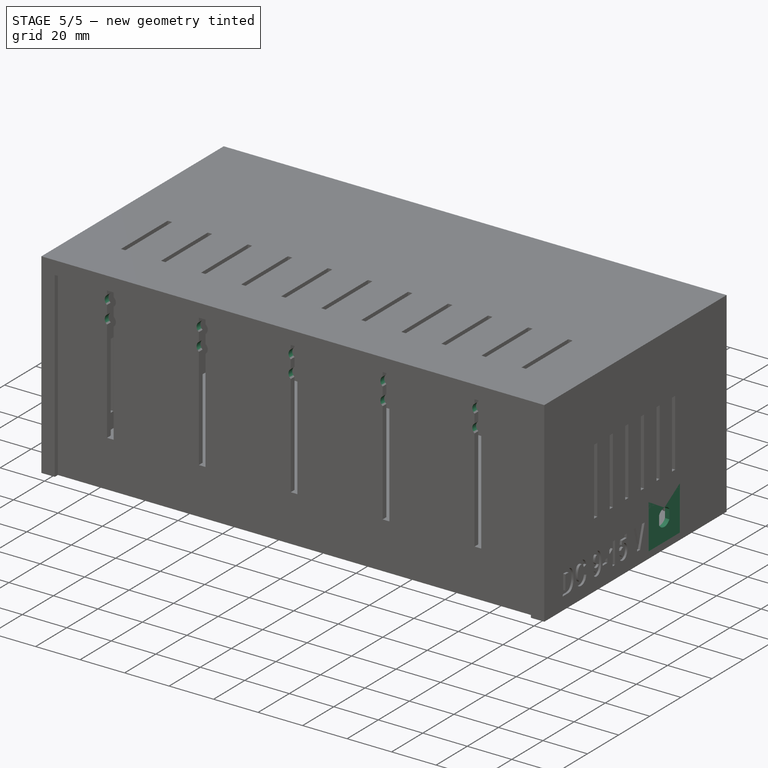
[diagram: stage 5 of 5 — iso view after this stage's code; geometry added in this stage tinted green]
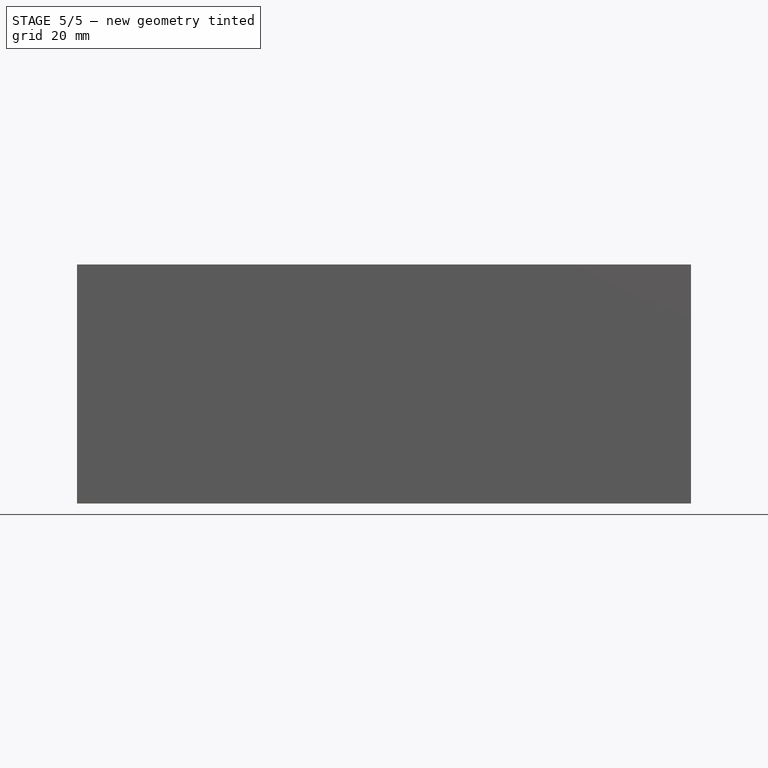
[diagram: stage 5 of 5 — front view after this stage's code; geometry added in this stage tinted green]
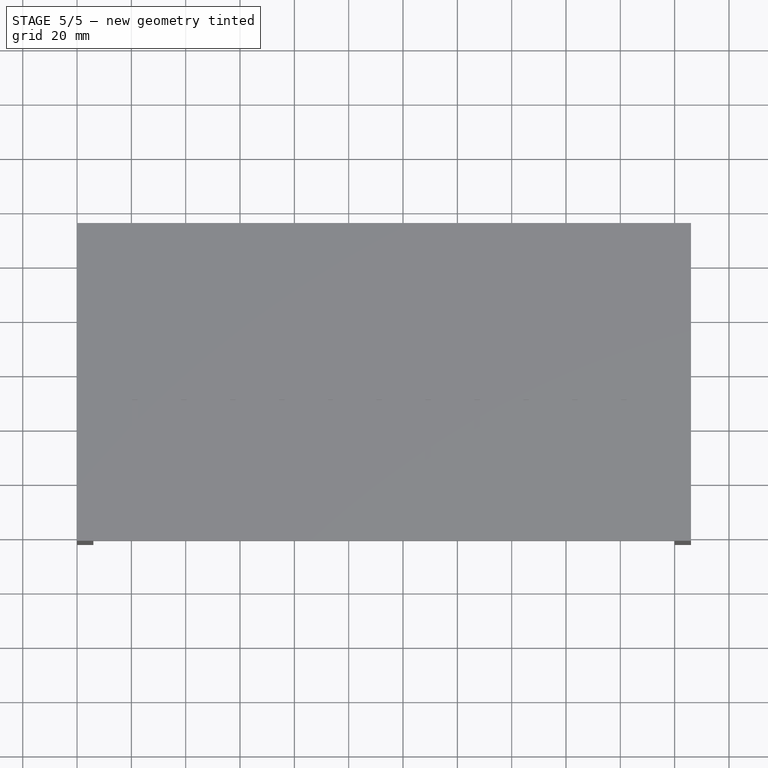
[diagram: stage 5 of 5 — top view after this stage's code; geometry added in this stage tinted green]
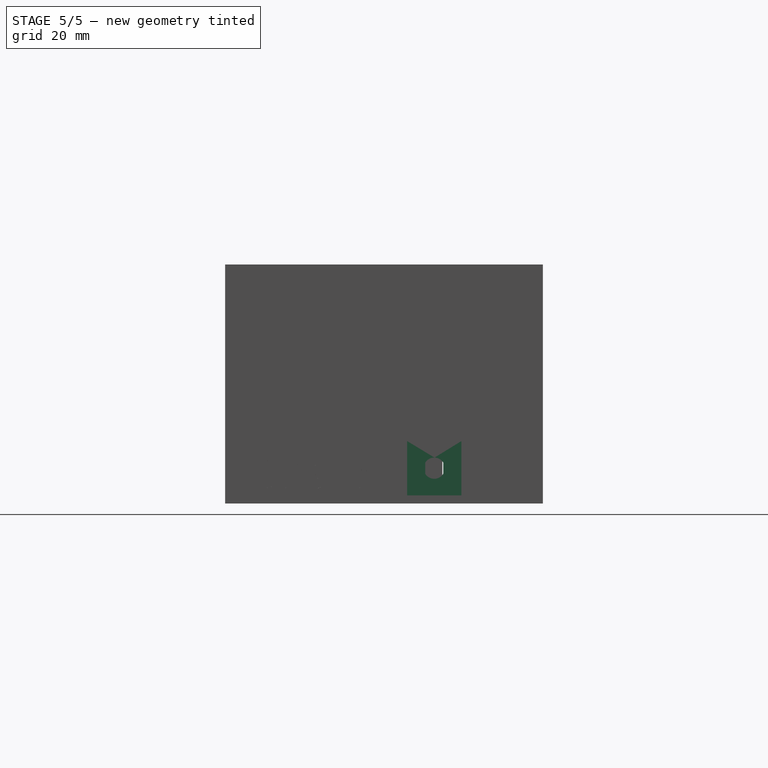
[diagram: stage 5 of 5 — right view after this stage's code; geometry added in this stage tinted green]
FEATURE [Sketcher::SketchObject] Sketch006
  ArcFitTolerance = 1e-06
  AttachmentSupport = -> [Pocket001]
  FullyConstrained = false
  MakeInternals = false
  MapMode = 5
  Placement = pos=(0,0,0) rot=(1,0,0;1.5708rad)
  sketch-geometry (10):
    g0: Circle CenterX=29.55 CenterY=77 CenterZ=0 NormalX=0 NormalY=0 NormalZ=1 AngleXU=0 Radius=2.5
    g1: Circle CenterX=29.55 CenterY=69 CenterZ=0 NormalX=0 NormalY=0 NormalZ=1 AngleXU=0 Radius=2.5
    g2: Circle CenterX=70.85 CenterY=77 CenterZ=0 NormalX=0 NormalY=0 NormalZ=1 AngleXU=0 Radius=2.5
    g3: Circle CenterX=70.85 CenterY=69 CenterZ=0 NormalX=0 NormalY=0 NormalZ=1 AngleXU=0 Radius=2.5
    g4: Circle CenterX=112.15 CenterY=77 CenterZ=0 NormalX=0 NormalY=0 NormalZ=1 AngleXU=0 Radius=2.5
    g5: Circle CenterX=112.15 CenterY=69 CenterZ=0 NormalX=0 NormalY=0 NormalZ=1 AngleXU=0 Radius=2.5
    g6: Circle CenterX=153.45 CenterY=77 CenterZ=0 NormalX=0 NormalY=0 NormalZ=1 AngleXU=0 Radius=2.5
    g7: Circle CenterX=153.45 CenterY=69 CenterZ=0 NormalX=0 NormalY=0 NormalZ=1 AngleXU=0 Radius=2.5
    g8: Circle CenterX=194.75 CenterY=77 CenterZ=0 NormalX=0 NormalY=0 NormalZ=1 AngleXU=0 Radius=2.5
    g9: Circle CenterX=194.75 CenterY=69 CenterZ=0 NormalX=0 NormalY=0 NormalZ=1 AngleXU=0 Radius=2.5
  constraints (14):
    c: Diameter(g0) = 5
    c: Equal(g0,g1)
    c: DistanceY(g-1,g1) = 69
    c: DistanceY(g-1,g0) = 77
    c: DistanceX(g-1,g1) = 29.55
    c: DistanceX(g-1,g0) = 29.55
    c: Diameter(g2) = 5
    c: Diameter(g4) = 5
    c: Diameter(g6) = 5
    c: Diameter(g8) = 5
    c: Equal(g2,g3)
    c: Equal(g4,g5)
    c: Equal(g6,g7)
    c: Equal(g8,g9)
FEATURE [PartDesign::Pocket] Pocket002  label="отвори для індикаторів"
  BaseFeature = -> Pocket001
  Direction = (0,1,-2e-16)
  Length = 5
  Length2 = 5
  Profile = -> Sketch006
  ReferenceAxis = -> Sketch006 [N_Axis]
  Refine = true
  Suppressed = false
  Type = 0
FEATURE [Sketcher::SketchObject] Sketch008
  ArcFitTolerance = 1e-06
  AttachmentSupport = -> [Pocket002]
  ExternalGeometry = -> [Pocket002]
  FullyConstrained = false
  MakeInternals = false
  MapMode = 5
  Placement = pos=(0,0,88) rot=(0,0,1;0rad)
  sketch-geometry (4):
    g0: LineSegment StartX=0 StartY=2.4 StartZ=0 EndX=218.677 EndY=2.4 EndZ=0
    g1: LineSegment StartX=218.677 StartY=2.4 StartZ=0 EndX=218.677 EndY=7.789 EndZ=0
    g2: LineSegment StartX=218.677 StartY=7.789 StartZ=0 EndX=0 EndY=7.789 EndZ=0
    g3: LineSegment StartX=0 StartY=7.789 StartZ=0 EndX=0 EndY=2.4 EndZ=0
  constraints (9):
    c: Coincident(g0,g1)
    c: Coincident(g1,g2)
    c: Coincident(g2,g3)
    c: Coincident(g3,g0)
    c: Horizontal(g0)
    c: Horizontal(g2)
    c: Vertical(g1)
    c: Vertical(g3)
    c: Coincident(g0,g-3)
FEATURE [PartDesign::Pocket] Pocket003  label="потай зверху"
  BaseFeature = -> Pocket002
  Direction = (0,0,-1)
  Length = 10
  Length2 = 5
  Profile = -> Sketch008
  ReferenceAxis = -> Sketch008 [N_Axis]
  Refine = true
  Suppressed = false
  Type = 0
FEATURE [Sketcher::SketchObject] Sketch009
  ArcFitTolerance = 1e-06
  AttachmentSupport = -> [Pocket003]
  ExternalGeometry = -> [Pocket003]
  FullyConstrained = false
  MakeInternals = false
  MapMode = 5
  Placement = pos=(212.55,0,0) rot=(0.57735,0.57735,0.57735;2.0944rad)
  sketch-geometry (4):
    g0: LineSegment StartX=7.4 StartY=3 StartZ=0 EndX=2.4 EndY=3 EndZ=0
    g1: LineSegment StartX=2.4 StartY=3 StartZ=0 EndX=2.4 EndY=40.5 EndZ=0
    g2: LineSegment StartX=2.4 StartY=40.5 StartZ=0 EndX=7.4 EndY=54.975 EndZ=0
    g3: LineSegment StartX=7.4 StartY=54.975 StartZ=0 EndX=7.4 EndY=3 EndZ=0
  constraints (8):
    c: Coincident(g-3,g0)
    c: Coincident(g0,g-4)
    c: Coincident(g0,g1)
    c: Symmetric(g-4,g-4,g1)
    c: Coincident(g1,g2)
    c: Coincident(g2,g3)
    c: Coincident(g3,g0)
    c: Vertical(g3)
FEATURE [PartDesign::Pocket] Pocket004  label="нихній зріз"
  BaseFeature = -> Pocket003
  Direction = (-1,0,0)
  Length = 200
  Length2 = 5
  Profile = -> Sketch009
  ReferenceAxis = -> Sketch009 [N_Axis]
  Refine = true
  Suppressed = false
  Type = 0
FEATURE [Sketcher::SketchObject] Sketch010
  ArcFitTolerance = 1e-06
  AttachmentSupport = -> [Pocket004]
  ExternalGeometry = -> [Pocket004]
  FullyConstrained = true
  MakeInternals = false
  MapMode = 5
  Placement = pos=(0,0,3) rot=(0,0,1;0rad)
  sketch-geometry (5):
    g0: LineSegment StartX=226 StartY=85 StartZ=0 EndX=224 EndY=85 EndZ=0
    g1: LineSegment StartX=224 StartY=85 StartZ=0 EndX=224 EndY=65 EndZ=0
    g2: LineSegment StartX=224 StartY=65 StartZ=0 EndX=226 EndY=65 EndZ=0
    g3: LineSegment StartX=226 StartY=65 StartZ=0 EndX=226 EndY=85 EndZ=0
    g4: GeomPoint X=226 Y=75 Z=0
  constraints (13):
    c: Coincident(g0,g1)
    c: Coincident(g1,g2)
    c: Coincident(g2,g3)
    c: Coincident(g3,g0)
    c: Horizontal(g0)
    c: Horizontal(g2)
    c: Vertical(g1)
    c: Vertical(g3)
    c: PointOnObject(g0,g-3)
    c: Symmetric(g3,g3,g4)
    c: Distance(g4,g-1) = 75
    c: DistanceY(g1,g1) = 20
    c: DistanceX(g2,g2) = 2
FEATURE [PartDesign::Pad] Pad004  label="стойкаотвір для штекера живлення"
  BaseFeature = -> Pocket004
  Direction = (0,0,1)
  Length = 20
  Length2 = 10
  Profile = -> Sketch010
  ReferenceAxis = -> Sketch010 [N_Axis]
  Refine = true
  Suppressed = false
  Type = 0
FEATURE [Sketcher::SketchObject] Sketch011
  ArcFitTolerance = 1e-06
  AttachmentSupport = -> [Pad004]
  FullyConstrained = false
  MakeInternals = false
  MapMode = 5
  Placement = pos=(226,0,0) rot=(0.57735,0.57735,0.57735;2.0944rad)
  sketch-geometry (4):
    g0: ArcOfCircle CenterX=75 CenterY=13.0067 CenterZ=0 NormalX=0 NormalY=0 NormalZ=1 AngleXU=0 Radius=3.9 StartAngle=0.56207 EndAngle=2.57952
    g1: LineSegment StartX=71.7 StartY=15.0852 StartZ=0 EndX=71.7 EndY=10.9283 EndZ=0
    g2: LineSegment StartX=78.3 StartY=15.0852 StartZ=0 EndX=78.3 EndY=10.9283 EndZ=0
    g3: ArcOfCircle CenterX=75 CenterY=13.0067 CenterZ=0 NormalX=0 NormalY=0 NormalZ=1 AngleXU=0 Radius=3.9 StartAngle=3.70366 EndAngle=5.72112
  constraints (13):
    c: Diameter(g0) = 7.8
    c: Vertical(g1)
    c: Vertical(g2)
    c: Distance(g0,g1) = 3.3
    c: Distance(g0,g2) = 3.3
    c: PointOnObject(g1,g3)
    c: Coincident(g3,g2)
    c: Coincident(g2,g0)
    c: Equal(g0,g3)
    c: PointOnObject(g3,g1)
    c: Coincident(g0,g3)
    c: Coincident(g1,g0)
    c: DistanceX(g-1,g0) = 75
FEATURE [PartDesign::Pocket] Pocket005  label="отвір для штекера живлення"
  BaseFeature = -> Pad004
  Direction = (-1,0,0)
  Length = 5
  Length2 = 5
  Profile = -> Sketch011
  ReferenceAxis = -> Sketch011 [N_Axis]
  Refine = true
  Suppressed = false
  Type = 0
FEATURE [Sketcher::SketchObject] Sketch012
  ArcFitTolerance = 1e-06
  AttachmentSupport = -> [Pocket005]
  ExternalGeometry = -> [Pocket005]
  FullyConstrained = true
  MakeInternals = false
  MapMode = 5
  Placement = pos=(0,0,88) rot=(0,0,1;0rad)
  sketch-geometry (8):
    g0: LineSegment StartX=0 StartY=0 StartZ=0 EndX=3 EndY=0 EndZ=0
    g1: LineSegment StartX=3 StartY=0 StartZ=0 EndX=3 EndY=3 EndZ=0
    g2: LineSegment StartX=3 StartY=3 StartZ=0 EndX=0 EndY=3 EndZ=0
    g3: LineSegment StartX=0 StartY=3 StartZ=0 EndX=0 EndY=0 EndZ=0
    g4: LineSegment StartX=226 StartY=0 StartZ=0 EndX=226 EndY=3 EndZ=0
    g5: LineSegment StartX=226 StartY=3 StartZ=0 EndX=223 EndY=3 EndZ=0
    g6: LineSegment StartX=223 StartY=3 StartZ=0 EndX=223 EndY=0 EndZ=0
    g7: LineSegment StartX=223 StartY=0 StartZ=0 EndX=226 EndY=0 EndZ=0
  constraints (22):
    c: Coincident(g0,g1)
    c: Coincident(g1,g2)
    c: Coincident(g2,g3)
    c: Coincident(g3,g0)
    c: Horizontal(g0)
    c: Horizontal(g2)
    c: Vertical(g1)
    c: Vertical(g3)
    c: Distance(g1,g3) = 3
    c: Distance(g0,g2) = 3
    c: Coincident(g0,g-1)
    c: Coincident(g4,g5)
    c: Coincident(g5,g6)
    c: Coincident(g6,g7)
    c: Coincident(g7,g4)
    c: Vertical(g4)
    c: Vertical(g6)
    c: Horizontal(g5)
    c: Horizontal(g7)
    c: Coincident(g4,g-3)
    c: DistanceX(g5,g5) = 3
    c: DistanceY(g6,g6) = 3
FEATURE [PartDesign::Pocket] Pocket006
  BaseFeature = -> Pocket005
  Direction = (0,0,-1)
  Length = 85
  Length2 = 5
  Profile = -> Sketch012
  ReferenceAxis = -> Sketch012 [N_Axis]
  Refine = true
  Suppressed = false
  Type = 0
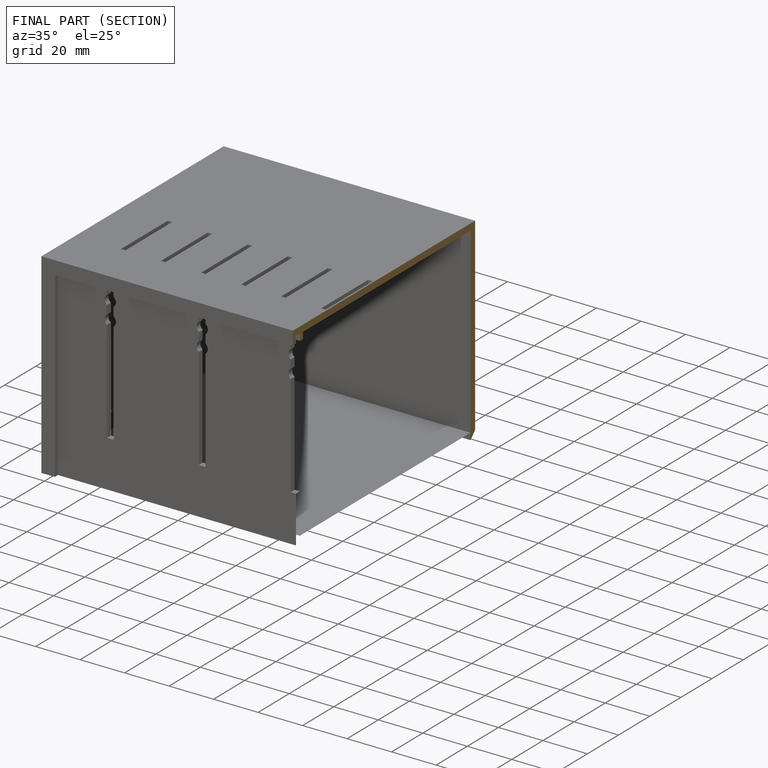
[diagram: finished part — half-section view (interior)]
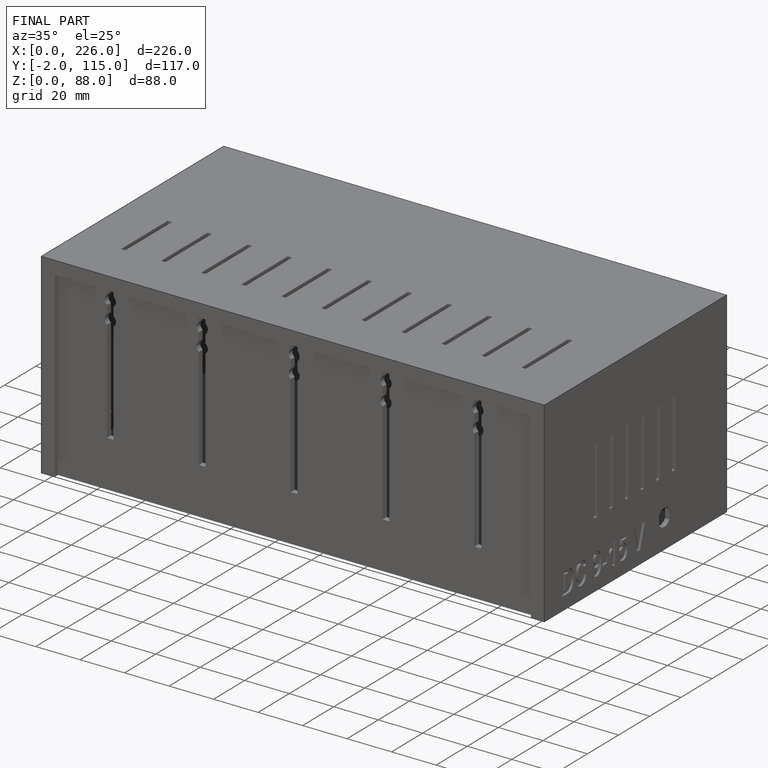
[diagram: finished part — iso view with bounding-box wireframe]
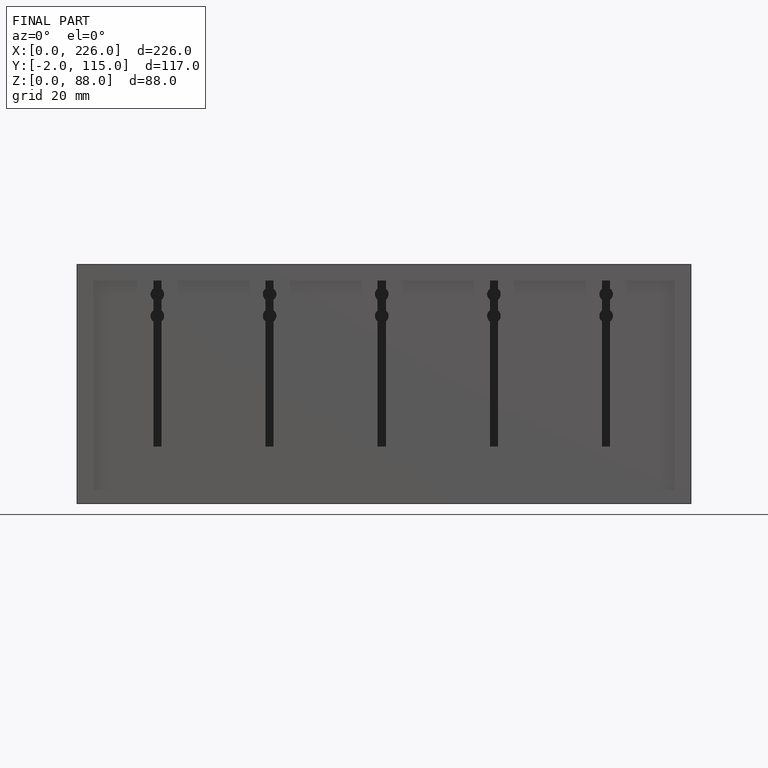
[diagram: finished part — front view with bounding-box wireframe]
